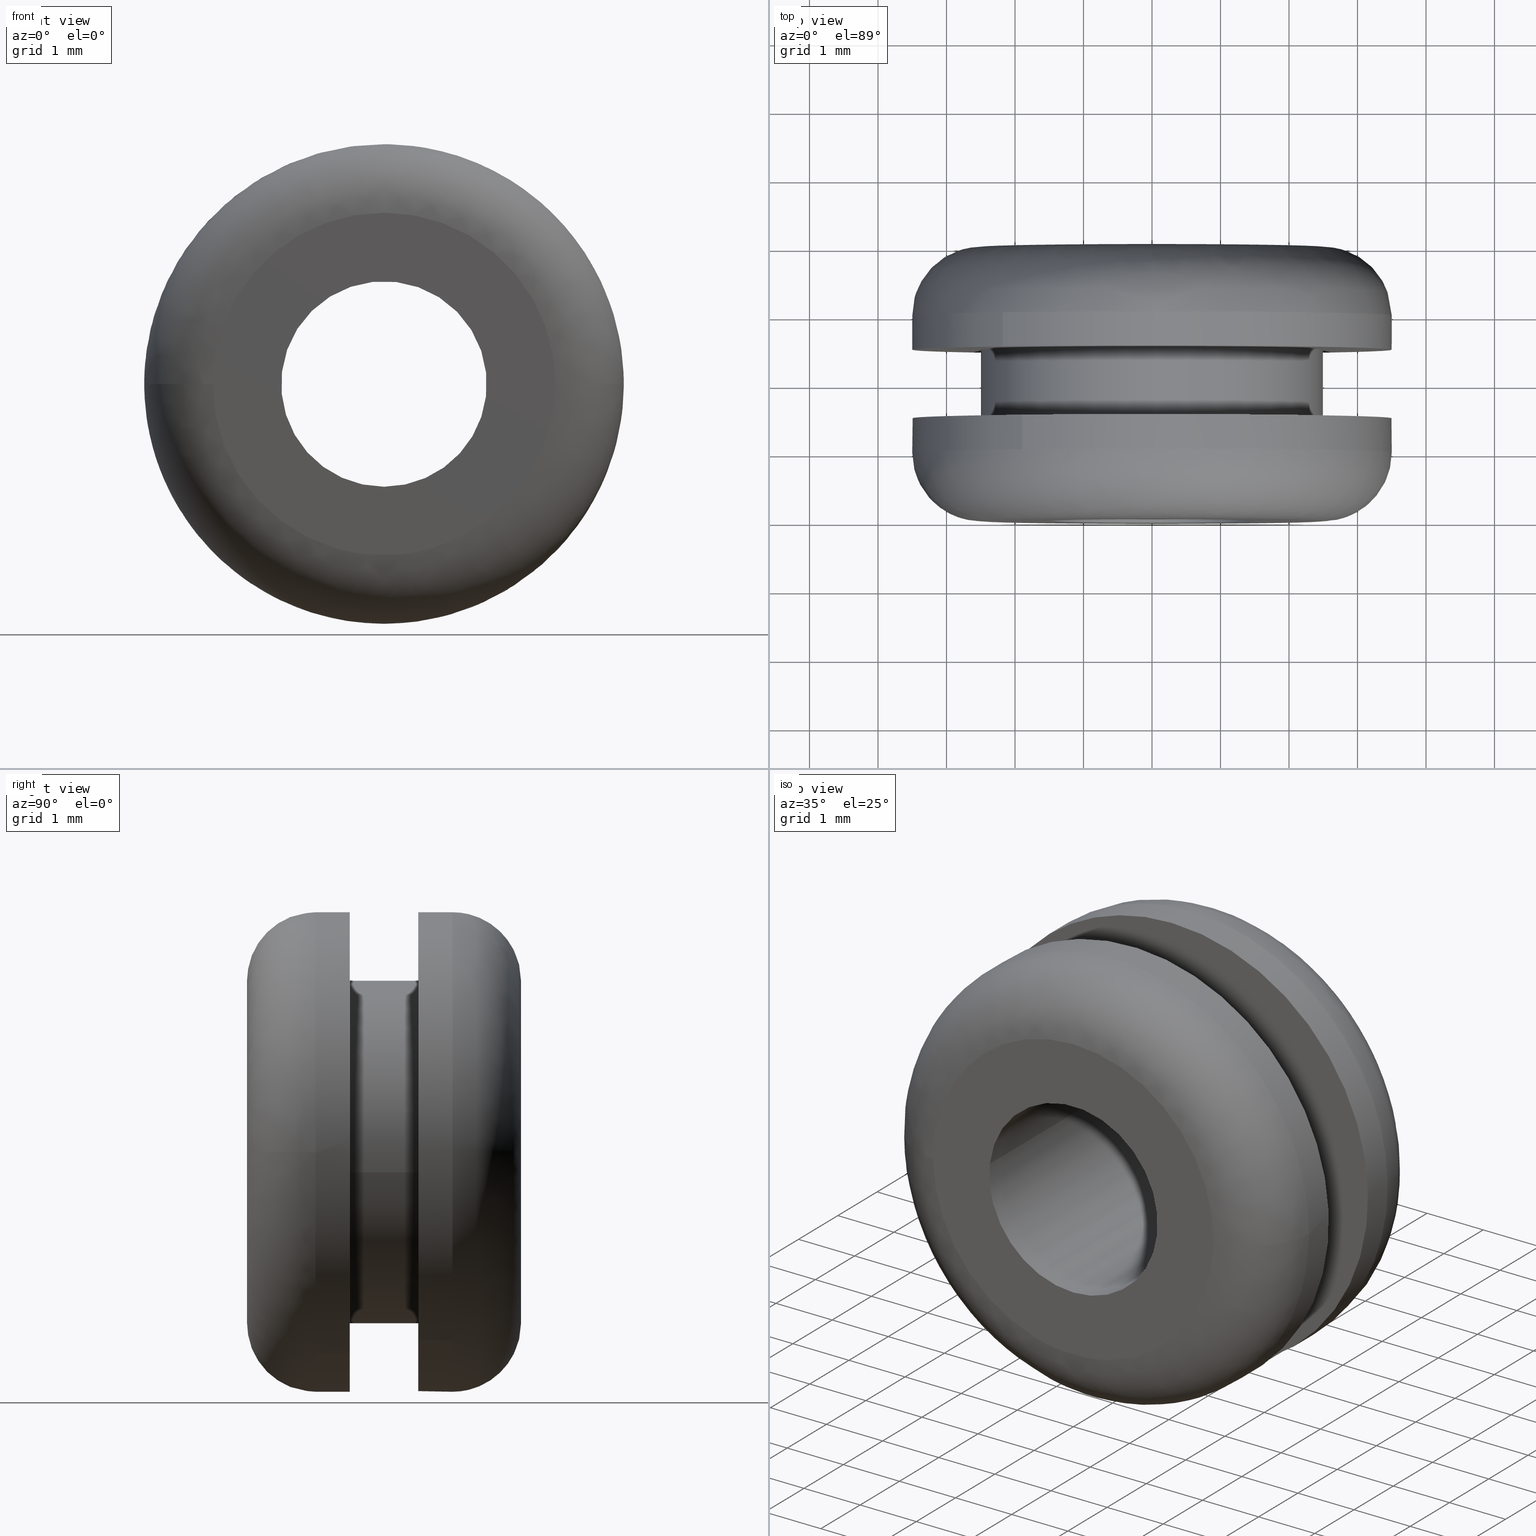
[diagram: canonical four-view strip — front | top / right | iso, engineering-drawing reading convention]
A machine part, canonical four-view strip (front | top / right | iso — engineering-drawing reading convention). The complete STEP part file that produces these views, byte-faithful:
ISO-10303-21;
HEADER;

FILE_DESCRIPTION( (''), '2;1');
FILE_NAME ('PC50.12492.TM_KG_74_CRUL_7219.stp','2019-12-19T11:09:36',(''),(''),'spGate 15.6.1','','');

FILE_SCHEMA (('AUTOMOTIVE_DESIGN'));
ENDSEC;

DATA;
#10=(GEOMETRIC_REPRESENTATION_CONTEXT(3) GLOBAL_UNCERTAINTY_ASSIGNED_CONTEXT((#11)) GLOBAL_UNIT_ASSIGNED_CONTEXT((#12,#13,#14)) REPRESENTATION_CONTEXT('ID1','3D'));
#11=UNCERTAINTY_MEASURE_WITH_UNIT(LENGTH_MEASURE(0.01),#15,'DISTANCE_ACCURACY_VALUE','Maximum model space distance between geometric entities at asserted connectivities');
#12=(NAMED_UNIT(*) SI_UNIT($,.STERADIAN.) SOLID_ANGLE_UNIT());
#13=(CONVERSION_BASED_UNIT('DEGREE',#16) NAMED_UNIT(#17) PLANE_ANGLE_UNIT());
#14=(LENGTH_UNIT() NAMED_UNIT(*) SI_UNIT(.MILLI.,.METRE.));
#15=(LENGTH_UNIT() NAMED_UNIT(*) SI_UNIT(.MILLI.,.METRE.));
#16=PLANE_ANGLE_MEASURE_WITH_UNIT(PLANE_ANGLE_MEASURE(0.01745329252),#18);
#17=DIMENSIONAL_EXPONENTS(0.0,0.0,0.0,0.0,0.0,0.0,0.0);
#18=(NAMED_UNIT(*) PLANE_ANGLE_UNIT() SI_UNIT($,.RADIAN.));
#19=MANIFOLD_SOLID_BREP('TM_KG_74',#31);
#20=ADVANCED_BREP_SHAPE_REPRESENTATION('',(#19),#10);
#21=APPLICATION_CONTEXT('');
#22=APPLICATION_PROTOCOL_DEFINITION('International Standard','automotive_design',1999,#21);
#23=PRODUCT_DEFINITION_CONTEXT('',#21,'design');
#24=PRODUCT_CONTEXT('',#21,'mechanical');
#25=PRODUCT('','','',(#24));
#26=PRODUCT_DEFINITION_FORMATION_WITH_SPECIFIED_SOURCE('','',#25,.NOT_KNOWN.);
#27=PRODUCT_RELATED_PRODUCT_CATEGORY('tool','tool',(#25));
#28=PRODUCT_DEFINITION('','',#26,#23);
#29=PRODUCT_DEFINITION_SHAPE('','',#28);
#30=SHAPE_DEFINITION_REPRESENTATION(#29,#20);
#31=CLOSED_SHELL('',(#40,#41,#42,#43,#44,#45,#46,#47,#48,#49,#50,#51,#52,#53,#54,#55));
#32=COLOUR_RGB('',0.00000000000E+000,0.00000000000E+000,0.00000000000E+000);
#33=FILL_AREA_STYLE_COLOUR('',#32);
#34=FILL_AREA_STYLE('',(#33));
#35=SURFACE_STYLE_FILL_AREA(#34);
#36=SURFACE_SIDE_STYLE('',(#35));
#37=SURFACE_STYLE_USAGE(.BOTH.,#36);
#38=PRESENTATION_STYLE_ASSIGNMENT((#37));
#39=STYLED_ITEM('',(#38),#19);
#40=ADVANCED_FACE('',(#57,#58),#56,.F.);
#41=ADVANCED_FACE('',(#68,#69),#67,.F.);
#42=ADVANCED_FACE('',(#79,#80),#78,.F.);
#43=ADVANCED_FACE('',(#90,#91),#89,.F.);
#44=ADVANCED_FACE('',(#101),#100,.T.);
#45=ADVANCED_FACE('',(#111),#110,.T.);
#46=ADVANCED_FACE('',(#121),#120,.T.);
#47=ADVANCED_FACE('',(#131),#130,.T.);
#48=ADVANCED_FACE('',(#141),#140,.T.);
#49=ADVANCED_FACE('',(#151),#150,.T.);
#50=ADVANCED_FACE('',(#161),#160,.T.);
#51=ADVANCED_FACE('',(#171),#170,.T.);
#52=ADVANCED_FACE('',(#181),#180,.F.);
#53=ADVANCED_FACE('',(#191),#190,.F.);
#54=ADVANCED_FACE('',(#201),#200,.T.);
#55=ADVANCED_FACE('',(#211),#210,.T.);
#56=PLANE('',#223);
#57=FACE_OUTER_BOUND('',#224,.T.);
#58=FACE_BOUND('',#225,.T.);
#59=COLOUR_RGB('',1.00000000000E+000,1.00000000000E+000,1.00000000000E+000);
#60=FILL_AREA_STYLE_COLOUR('',#59);
#61=FILL_AREA_STYLE('',(#60));
#62=SURFACE_STYLE_FILL_AREA(#61);
#63=SURFACE_SIDE_STYLE('',(#62));
#64=SURFACE_STYLE_USAGE(.BOTH.,#63);
#65=PRESENTATION_STYLE_ASSIGNMENT((#64));
#66=STYLED_ITEM('',(#65),#40);
#67=PLANE('',#229);
#68=FACE_OUTER_BOUND('',#230,.T.);
#69=FACE_BOUND('',#231,.T.);
#70=COLOUR_RGB('',1.00000000000E+000,1.00000000000E+000,1.00000000000E+000);
#71=FILL_AREA_STYLE_COLOUR('',#70);
#72=FILL_AREA_STYLE('',(#71));
#73=SURFACE_STYLE_FILL_AREA(#72);
#74=SURFACE_SIDE_STYLE('',(#73));
#75=SURFACE_STYLE_USAGE(.BOTH.,#74);
#76=PRESENTATION_STYLE_ASSIGNMENT((#75));
#77=STYLED_ITEM('',(#76),#41);
#78=PLANE('',#235);
#79=FACE_OUTER_BOUND('',#236,.T.);
#80=FACE_BOUND('',#237,.T.);
#81=COLOUR_RGB('',1.00000000000E+000,1.00000000000E+000,1.00000000000E+000);
#82=FILL_AREA_STYLE_COLOUR('',#81);
#83=FILL_AREA_STYLE('',(#82));
#84=SURFACE_STYLE_FILL_AREA(#83);
#85=SURFACE_SIDE_STYLE('',(#84));
#86=SURFACE_STYLE_USAGE(.BOTH.,#85);
#87=PRESENTATION_STYLE_ASSIGNMENT((#86));
#88=STYLED_ITEM('',(#87),#42);
#89=PLANE('',#241);
#90=FACE_OUTER_BOUND('',#242,.T.);
#91=FACE_BOUND('',#243,.T.);
#92=COLOUR_RGB('',1.00000000000E+000,1.00000000000E+000,1.00000000000E+000);
#93=FILL_AREA_STYLE_COLOUR('',#92);
#94=FILL_AREA_STYLE('',(#93));
#95=SURFACE_STYLE_FILL_AREA(#94);
#96=SURFACE_SIDE_STYLE('',(#95));
#97=SURFACE_STYLE_USAGE(.BOTH.,#96);
#98=PRESENTATION_STYLE_ASSIGNMENT((#97));
#99=STYLED_ITEM('',(#98),#43);
#100=CYLINDRICAL_SURFACE('',#247,2.50000000000E+000);
#101=FACE_OUTER_BOUND('',#248,.T.);
#102=COLOUR_RGB('',1.00000000000E+000,1.00000000000E+000,1.00000000000E+000);
#103=FILL_AREA_STYLE_COLOUR('',#102);
#104=FILL_AREA_STYLE('',(#103));
#105=SURFACE_STYLE_FILL_AREA(#104);
#106=SURFACE_SIDE_STYLE('',(#105));
#107=SURFACE_STYLE_USAGE(.BOTH.,#106);
#108=PRESENTATION_STYLE_ASSIGNMENT((#107));
#109=STYLED_ITEM('',(#108),#44);
#110=CYLINDRICAL_SURFACE('',#252,2.50000000000E+000);
#111=FACE_OUTER_BOUND('',#253,.T.);
#112=COLOUR_RGB('',1.00000000000E+000,1.00000000000E+000,1.00000000000E+000);
#113=FILL_AREA_STYLE_COLOUR('',#112);
#114=FILL_AREA_STYLE('',(#113));
#115=SURFACE_STYLE_FILL_AREA(#114);
#116=SURFACE_SIDE_STYLE('',(#115));
#117=SURFACE_STYLE_USAGE(.BOTH.,#116);
#118=PRESENTATION_STYLE_ASSIGNMENT((#117));
#119=STYLED_ITEM('',(#118),#45);
#120=CYLINDRICAL_SURFACE('',#257,3.50000000000E+000);
#121=FACE_OUTER_BOUND('',#258,.T.);
#122=COLOUR_RGB('',1.00000000000E+000,1.00000000000E+000,1.00000000000E+000);
#123=FILL_AREA_STYLE_COLOUR('',#122);
#124=FILL_AREA_STYLE('',(#123));
#125=SURFACE_STYLE_FILL_AREA(#124);
#126=SURFACE_SIDE_STYLE('',(#125));
#127=SURFACE_STYLE_USAGE(.BOTH.,#126);
#128=PRESENTATION_STYLE_ASSIGNMENT((#127));
#129=STYLED_ITEM('',(#128),#46);
#130=CYLINDRICAL_SURFACE('',#262,3.50000000000E+000);
#131=FACE_OUTER_BOUND('',#263,.T.);
#132=COLOUR_RGB('',1.00000000000E+000,1.00000000000E+000,1.00000000000E+000);
#133=FILL_AREA_STYLE_COLOUR('',#132);
#134=FILL_AREA_STYLE('',(#133));
#135=SURFACE_STYLE_FILL_AREA(#134);
#136=SURFACE_SIDE_STYLE('',(#135));
#137=SURFACE_STYLE_USAGE(.BOTH.,#136);
#138=PRESENTATION_STYLE_ASSIGNMENT((#137));
#139=STYLED_ITEM('',(#138),#47);
#140=( BOUNDED_SURFACE() B_SPLINE_SURFACE( 2,2,((#264,#265,#266,#267,#268),(#269,#270,#271,#272,#273),(#274,#275,#276,#277,#278),(#279,#280,#281,#282,#283),(#284,#285,#286,#287,#288)), .UNSPECIFIED.,.F.,.F.,.F.) B_SPLINE_SURFACE_WITH_KNOTS((3,2,3),(3,2,3),(-1.57079684420E+000,-1.04719719726E+000,1.06181747350E-006),(0.00000000000E+000,1.57079632679E+000,3.14159265359E+000), .UNSPECIFIED. ) GEOMETRIC_REPRESENTATION_ITEM() RATIONAL_B_SPLINE_SURFACE(((9.33012613407E-001,6.59739545873E-001,9.33012613407E-001,6.59739545873E-001,9.33012613407E-001),(9.33012547213E-001,6.59739499066E-001,9.33012547213E-001,6.59739499066E-001,9.33012547213E-001),(1.00000000000E+000,7.07106781187E-001,1.00000000000E+000,7.07106781187E-001,1.00000000000E+000),(8.66025226815E-001,6.12372310559E-001,8.66025226815E-001,6.12372310559E-001,8.66025226815E-001),(1.00000000000E+000,7.07106781187E-001,1.00000000000E+000,7.07106781187E-001,1.00000000000E+000))) REPRESENTATION_ITEM('') SURFACE() );
#141=FACE_OUTER_BOUND('',#289,.T.);
#142=COLOUR_RGB('',1.00000000000E+000,1.00000000000E+000,1.00000000000E+000);
#143=FILL_AREA_STYLE_COLOUR('',#142);
#144=FILL_AREA_STYLE('',(#143));
#145=SURFACE_STYLE_FILL_AREA(#144);
#146=SURFACE_SIDE_STYLE('',(#145));
#147=SURFACE_STYLE_USAGE(.BOTH.,#146);
#148=PRESENTATION_STYLE_ASSIGNMENT((#147));
#149=STYLED_ITEM('',(#148),#48);
#150=( BOUNDED_SURFACE() B_SPLINE_SURFACE( 2,2,((#290,#291,#292,#293,#294),(#295,#296,#297,#298,#299),(#300,#301,#302,#303,#304),(#305,#306,#307,#308,#309),(#310,#311,#312,#313,#314)), .UNSPECIFIED.,.F.,.F.,.F.) B_SPLINE_SURFACE_WITH_KNOTS((3,2,3),(3,2,3),(-1.57079693037E+000,-1.04719719726E+000,1.06181747350E-006),(3.14159265359E+000,4.71238898038E+000,6.28318530718E+000), .UNSPECIFIED. ) GEOMETRIC_REPRESENTATION_ITEM() RATIONAL_B_SPLINE_SURFACE(((9.33012613407E-001,6.59739545873E-001,9.33012613407E-001,6.59739545873E-001,9.33012613407E-001),(9.33012536188E-001,6.59739491271E-001,9.33012536188E-001,6.59739491271E-001,9.33012536188E-001),(1.00000000000E+000,7.07106781187E-001,1.00000000000E+000,7.07106781187E-001,1.00000000000E+000),(8.66025226815E-001,6.12372310559E-001,8.66025226815E-001,6.12372310559E-001,8.66025226815E-001),(1.00000000000E+000,7.07106781187E-001,1.00000000000E+000,7.07106781187E-001,1.00000000000E+000))) REPRESENTATION_ITEM('') SURFACE() );
#151=FACE_OUTER_BOUND('',#315,.T.);
#152=COLOUR_RGB('',1.00000000000E+000,1.00000000000E+000,1.00000000000E+000);
#153=FILL_AREA_STYLE_COLOUR('',#152);
#154=FILL_AREA_STYLE('',(#153));
#155=SURFACE_STYLE_FILL_AREA(#154);
#156=SURFACE_SIDE_STYLE('',(#155));
#157=SURFACE_STYLE_USAGE(.BOTH.,#156);
#158=PRESENTATION_STYLE_ASSIGNMENT((#157));
#159=STYLED_ITEM('',(#158),#49);
#160=( BOUNDED_SURFACE() B_SPLINE_SURFACE( 2,2,((#316,#317,#318,#319,#320),(#321,#322,#323,#324,#325),(#326,#327,#328,#329,#330),(#331,#332,#333,#334,#335),(#336,#337,#338,#339,#340)), .UNSPECIFIED.,.F.,.F.,.F.) B_SPLINE_SURFACE_WITH_KNOTS((3,2,3),(3,2,3),(0.00000000000E+000,5.00000000000E-001,1.00000000000E+000),(0.00000000000E+000,5.00000000000E-001,1.00000000000E+000), .UNSPECIFIED. ) GEOMETRIC_REPRESENTATION_ITEM() RATIONAL_B_SPLINE_SURFACE(((1.00000000000E+000,7.07106781015E-001,1.00000000000E+000,7.07106781015E-001,1.00000000000E+000),(7.07106781187E-001,4.99999999879E-001,7.07106781187E-001,4.99999999879E-001,7.07106781187E-001),(1.00000000000E+000,7.07106781015E-001,1.00000000000E+000,7.07106781015E-001,1.00000000000E+000),(7.07106781187E-001,4.99999999879E-001,7.07106781187E-001,4.99999999879E-001,7.07106781187E-001),(1.00000000000E+000,7.07106781015E-001,1.00000000000E+000,7.07106781015E-001,1.00000000000E+000))) REPRESENTATION_ITEM('') SURFACE() );
#161=FACE_OUTER_BOUND('',#341,.T.);
#162=COLOUR_RGB('',1.00000000000E+000,1.00000000000E+000,1.00000000000E+000);
#163=FILL_AREA_STYLE_COLOUR('',#162);
#164=FILL_AREA_STYLE('',(#163));
#165=SURFACE_STYLE_FILL_AREA(#164);
#166=SURFACE_SIDE_STYLE('',(#165));
#167=SURFACE_STYLE_USAGE(.BOTH.,#166);
#168=PRESENTATION_STYLE_ASSIGNMENT((#167));
#169=STYLED_ITEM('',(#168),#50);
#170=( BOUNDED_SURFACE() B_SPLINE_SURFACE( 2,2,((#342,#343,#344,#345,#346),(#347,#348,#349,#350,#351),(#352,#353,#354,#355,#356),(#357,#358,#359,#360,#361),(#362,#363,#364,#365,#366)), .UNSPECIFIED.,.F.,.F.,.F.) B_SPLINE_SURFACE_WITH_KNOTS((3,2,3),(3,2,3),(0.00000000000E+000,5.00000000000E-001,1.00000000000E+000),(0.00000000000E+000,5.00000000000E-001,1.00000000000E+000), .UNSPECIFIED. ) GEOMETRIC_REPRESENTATION_ITEM() RATIONAL_B_SPLINE_SURFACE(((1.00000000000E+000,7.07106781015E-001,1.00000000000E+000,7.07106781015E-001,1.00000000000E+000),(7.07106781187E-001,4.99999999879E-001,7.07106781187E-001,4.99999999879E-001,7.07106781187E-001),(1.00000000000E+000,7.07106781015E-001,1.00000000000E+000,7.07106781015E-001,1.00000000000E+000),(7.07106781187E-001,4.99999999879E-001,7.07106781187E-001,4.99999999879E-001,7.07106781187E-001),(1.00000000000E+000,7.07106781015E-001,1.00000000000E+000,7.07106781015E-001,1.00000000000E+000))) REPRESENTATION_ITEM('') SURFACE() );
#171=FACE_OUTER_BOUND('',#367,.T.);
#172=COLOUR_RGB('',1.00000000000E+000,1.00000000000E+000,1.00000000000E+000);
#173=FILL_AREA_STYLE_COLOUR('',#172);
#174=FILL_AREA_STYLE('',(#173));
#175=SURFACE_STYLE_FILL_AREA(#174);
#176=SURFACE_SIDE_STYLE('',(#175));
#177=SURFACE_STYLE_USAGE(.BOTH.,#176);
#178=PRESENTATION_STYLE_ASSIGNMENT((#177));
#179=STYLED_ITEM('',(#178),#51);
#180=CYLINDRICAL_SURFACE('',#371,1.50000000000E+000);
#181=FACE_OUTER_BOUND('',#372,.T.);
#182=COLOUR_RGB('',1.00000000000E+000,1.00000000000E+000,1.00000000000E+000);
#183=FILL_AREA_STYLE_COLOUR('',#182);
#184=FILL_AREA_STYLE('',(#183));
#185=SURFACE_STYLE_FILL_AREA(#184);
#186=SURFACE_SIDE_STYLE('',(#185));
#187=SURFACE_STYLE_USAGE(.BOTH.,#186);
#188=PRESENTATION_STYLE_ASSIGNMENT((#187));
#189=STYLED_ITEM('',(#188),#52);
#190=CYLINDRICAL_SURFACE('',#376,1.50000000000E+000);
#191=FACE_OUTER_BOUND('',#377,.T.);
#192=COLOUR_RGB('',1.00000000000E+000,1.00000000000E+000,1.00000000000E+000);
#193=FILL_AREA_STYLE_COLOUR('',#192);
#194=FILL_AREA_STYLE('',(#193));
#195=SURFACE_STYLE_FILL_AREA(#194);
#196=SURFACE_SIDE_STYLE('',(#195));
#197=SURFACE_STYLE_USAGE(.BOTH.,#196);
#198=PRESENTATION_STYLE_ASSIGNMENT((#197));
#199=STYLED_ITEM('',(#198),#53);
#200=CYLINDRICAL_SURFACE('',#381,3.50000000000E+000);
#201=FACE_OUTER_BOUND('',#382,.T.);
#202=COLOUR_RGB('',1.00000000000E+000,1.00000000000E+000,1.00000000000E+000);
#203=FILL_AREA_STYLE_COLOUR('',#202);
#204=FILL_AREA_STYLE('',(#203));
#205=SURFACE_STYLE_FILL_AREA(#204);
#206=SURFACE_SIDE_STYLE('',(#205));
#207=SURFACE_STYLE_USAGE(.BOTH.,#206);
#208=PRESENTATION_STYLE_ASSIGNMENT((#207));
#209=STYLED_ITEM('',(#208),#54);
#210=CYLINDRICAL_SURFACE('',#386,3.50000000000E+000);
#211=FACE_OUTER_BOUND('',#387,.T.);
#212=COLOUR_RGB('',1.00000000000E+000,1.00000000000E+000,1.00000000000E+000);
#213=FILL_AREA_STYLE_COLOUR('',#212);
#214=FILL_AREA_STYLE('',(#213));
#215=SURFACE_STYLE_FILL_AREA(#214);
#216=SURFACE_SIDE_STYLE('',(#215));
#217=SURFACE_STYLE_USAGE(.BOTH.,#216);
#218=PRESENTATION_STYLE_ASSIGNMENT((#217));
#219=STYLED_ITEM('',(#218),#55);
#220=CARTESIAN_POINT('',(-7.27461339179E+000,1.50000000000E+000,8.05000000000E+000));
#221=DIRECTION('',(0.00000000000E+000,-1.00000000000E+000,0.00000000000E+000));
#222=DIRECTION('',(0.00000000000E+000,0.00000000000E+000,-1.00000000000E+000));
#223=AXIS2_PLACEMENT_3D('',#220,#221,#222);
#224=EDGE_LOOP('',(#388,#389,#390));
#225=EDGE_LOOP('',(#391,#392,#393));
#226=CARTESIAN_POINT('',(-7.27461339179E+000,2.50000000000E+000,-8.05000000000E+000));
#227=DIRECTION('',(0.00000000000E+000,1.00000000000E+000,0.00000000000E+000));
#228=DIRECTION('',(0.00000000000E+000,0.00000000000E+000,1.00000000000E+000));
#229=AXIS2_PLACEMENT_3D('',#226,#227,#228);
#230=EDGE_LOOP('',(#394,#395,#396));
#231=EDGE_LOOP('',(#397,#398,#399));
#232=CARTESIAN_POINT('',(-5.19615242290E+000,4.00000000000E+000,5.75000000013E+000));
#233=DIRECTION('',(0.00000000000E+000,-1.00000000000E+000,0.00000000000E+000));
#234=DIRECTION('',(0.00000000000E+000,0.00000000000E+000,-1.00000000000E+000));
#235=AXIS2_PLACEMENT_3D('',#232,#233,#234);
#236=EDGE_LOOP('',(#400,#401));
#237=EDGE_LOOP('',(#402,#403,#404));
#238=CARTESIAN_POINT('',(-5.19615242273E+000,-3.67381900000E-016,-5.75000000002E+000));
#239=DIRECTION('',(0.00000000000E+000,1.00000000000E+000,0.00000000000E+000));
#240=DIRECTION('',(0.00000000000E+000,0.00000000000E+000,1.00000000000E+000));
#241=AXIS2_PLACEMENT_3D('',#238,#239,#240);
#242=EDGE_LOOP('',(#405,#406,#407));
#243=EDGE_LOOP('',(#408,#409,#410));
#244=CARTESIAN_POINT('',(2.08888715409E-016,2.52500000000E+000,1.37333843271E-015));
#245=DIRECTION('',(3.87739764389E-016,1.00000000000E+000,4.01448887381E-015));
#246=DIRECTION('',(-9.93009526364E-001,-8.88178419700E-017,1.18034234657E-001));
#247=AXIS2_PLACEMENT_3D('',#244,#245,#246);
#248=EDGE_LOOP('',(#411,#412,#413,#414));
#249=CARTESIAN_POINT('',(2.08888715409E-016,2.52500000000E+000,1.37333843271E-015));
#250=DIRECTION('',(3.87739764389E-016,1.00000000000E+000,4.01448887381E-015));
#251=DIRECTION('',(-9.93009526364E-001,-8.88178419700E-017,1.18034234657E-001));
#252=AXIS2_PLACEMENT_3D('',#249,#250,#251);
#253=EDGE_LOOP('',(#415,#416,#417,#418,#419,#420));
#254=CARTESIAN_POINT('',(-2.86607276532E-016,1.51250000000E+000,-4.85808096785E-016));
#255=DIRECTION('',(-2.45806721167E-016,1.00000000000E+000,-1.58834548710E-016));
#256=DIRECTION('',(-5.42728861529E-001,-0.00000000000E+000,8.39907960948E-001));
#257=AXIS2_PLACEMENT_3D('',#254,#255,#256);
#258=EDGE_LOOP('',(#421,#422,#423,#424,#425,#426,#427));
#259=CARTESIAN_POINT('',(-2.86607276532E-016,1.51250000000E+000,-4.85808096785E-016));
#260=DIRECTION('',(-2.45806721167E-016,1.00000000000E+000,-1.58834548710E-016));
#261=DIRECTION('',(-5.42728861529E-001,-0.00000000000E+000,8.39907960948E-001));
#262=AXIS2_PLACEMENT_3D('',#259,#260,#261);
#263=EDGE_LOOP('',(#428,#429,#430,#431,#432,#433,#434,#435));
#264=CARTESIAN_POINT('',(3.98782032897E-013,4.00000000000E+000,2.49999947044E+000));
#265=CARTESIAN_POINT('',(2.49999947044E+000,4.00000000000E+000,2.49999947044E+000));
#266=CARTESIAN_POINT('',(2.49999947044E+000,4.00000000000E+000,-3.85980801734E-014));
#267=CARTESIAN_POINT('',(2.49999947044E+000,4.00000000000E+000,-2.49999947044E+000));
#268=CARTESIAN_POINT('',(3.98169729850E-013,4.00000000000E+000,-2.49999947044E+000));
#269=CARTESIAN_POINT('',(3.98814846234E-013,4.00000014189E+000,2.76794913634E+000));
#270=CARTESIAN_POINT('',(2.76794913634E+000,4.00000014189E+000,2.76794913634E+000));
#271=CARTESIAN_POINT('',(2.76794913634E+000,4.00000014189E+000,-3.86308925856E-014));
#272=CARTESIAN_POINT('',(2.76794913634E+000,4.00000014189E+000,-2.76794913634E+000));
#273=CARTESIAN_POINT('',(3.98136916614E-013,4.00000014189E+000,-2.76794913634E+000));
#274=CARTESIAN_POINT('',(3.98795455272E-013,3.86602522681E+000,3.00000030652E+000));
#275=CARTESIAN_POINT('',(3.00000030652E+000,3.86602522681E+000,3.00000030652E+000));
#276=CARTESIAN_POINT('',(3.00000030652E+000,3.86602522681E+000,-3.94846434837E-014));
#277=CARTESIAN_POINT('',(3.00000030652E+000,3.86602522681E+000,-3.00000030652E+000));
#278=CARTESIAN_POINT('',(3.98060691384E-013,3.86602522681E+000,-3.00000030652E+000));
#279=CARTESIAN_POINT('',(3.98753673595E-013,3.57734967929E+000,3.50000061304E+000));
#280=CARTESIAN_POINT('',(3.50000061304E+000,3.57734967929E+000,3.50000061304E+000));
#281=CARTESIAN_POINT('',(3.50000061304E+000,3.57734967929E+000,-4.13242192568E-014));
#282=CARTESIAN_POINT('',(3.50000061304E+000,3.57734967929E+000,-3.50000061304E+000));
#283=CARTESIAN_POINT('',(3.97896448997E-013,3.57734967929E+000,-3.50000061304E+000));
#284=CARTESIAN_POINT('',(3.98547649582E-013,2.99999893818E+000,3.50000000000E+000));
#285=CARTESIAN_POINT('',(3.50000000000E+000,2.99999893818E+000,3.50000000000E+000));
#286=CARTESIAN_POINT('',(3.50000000000E+000,2.99999893818E+000,-4.48809078369E-014));
#287=CARTESIAN_POINT('',(3.50000000000E+000,2.99999893818E+000,-3.50000000000E+000));
#288=CARTESIAN_POINT('',(3.97690425134E-013,2.99999893818E+000,-3.50000000000E+000));
#289=EDGE_LOOP('',(#436,#437,#438,#439,#440,#441,#442));
#290=CARTESIAN_POINT('',(3.98169729860E-013,4.00000000000E+000,-2.49999938225E+000));
#291=CARTESIAN_POINT('',(-2.49999938224E+000,4.00000000000E+000,-2.49999938225E+000));
#292=CARTESIAN_POINT('',(-2.49999938224E+000,4.00000000000E+000,-3.79857771369E-014));
#293=CARTESIAN_POINT('',(-2.49999938224E+000,4.00000000000E+000,2.49999938225E+000));
#294=CARTESIAN_POINT('',(3.98782032886E-013,4.00000000000E+000,2.49999938225E+000));
#295=CARTESIAN_POINT('',(3.98136916627E-013,4.00000016553E+000,-2.76794909541E+000));
#296=CARTESIAN_POINT('',(-2.76794909541E+000,4.00000016553E+000,-2.76794909541E+000));
#297=CARTESIAN_POINT('',(-2.76794909541E+000,4.00000016553E+000,-3.79529628251E-014));
#298=CARTESIAN_POINT('',(-2.76794909541E+000,4.00000016553E+000,2.76794909541E+000));
#299=CARTESIAN_POINT('',(3.98814846237E-013,4.00000016553E+000,2.76794909541E+000));
#300=CARTESIAN_POINT('',(3.98060691384E-013,3.86602522681E+000,-3.00000030652E+000));
#301=CARTESIAN_POINT('',(-3.00000030652E+000,3.86602522681E+000,-3.00000030652E+000));
#302=CARTESIAN_POINT('',(-3.00000030652E+000,3.86602522681E+000,-3.87498795964E-014));
#303=CARTESIAN_POINT('',(-3.00000030652E+000,3.86602522681E+000,3.00000030652E+000));
#304=CARTESIAN_POINT('',(3.98795455272E-013,3.86602522681E+000,3.00000030652E+000));
#305=CARTESIAN_POINT('',(3.97896448997E-013,3.57734967929E+000,-3.50000061304E+000));
#306=CARTESIAN_POINT('',(-3.50000061304E+000,3.57734967929E+000,-3.50000061304E+000));
#307=CARTESIAN_POINT('',(-3.50000061304E+000,3.57734967929E+000,-4.04669946589E-014));
#308=CARTESIAN_POINT('',(-3.50000061304E+000,3.57734967929E+000,3.50000061304E+000));
#309=CARTESIAN_POINT('',(3.98753673595E-013,3.57734967929E+000,3.50000061304E+000));
#310=CARTESIAN_POINT('',(3.97690425134E-013,2.99999893818E+000,-3.50000000000E+000));
#311=CARTESIAN_POINT('',(-3.50000000000E+000,2.99999893818E+000,-3.50000000000E+000));
#312=CARTESIAN_POINT('',(-3.50000000000E+000,2.99999893818E+000,-4.40236833892E-014));
#313=CARTESIAN_POINT('',(-3.50000000000E+000,2.99999893818E+000,3.50000000000E+000));
#314=CARTESIAN_POINT('',(3.98547649582E-013,2.99999893818E+000,3.50000000000E+000));
#315=EDGE_LOOP('',(#443,#444,#445,#446,#447));
#316=CARTESIAN_POINT('',(-3.50000000000E+000,1.00000000000E+000,3.17721922990E-014));
#317=CARTESIAN_POINT('',(-3.50000000000E+000,-4.85993231002E-010,2.98683484981E-014));
#318=CARTESIAN_POINT('',(-2.49999999951E+000,-5.55111512313E-016,2.99908091344E-014));
#319=CARTESIAN_POINT('',(-1.49999999903E+000,4.85992131938E-010,3.01132697708E-014));
#320=CARTESIAN_POINT('',(-1.50000000000E+000,1.00000000097E+000,3.20171135716E-014));
#321=CARTESIAN_POINT('',(-3.50000000000E+000,1.00000000000E+000,-3.50000000000E+000));
#322=CARTESIAN_POINT('',(-3.50000000000E+000,-4.85986591957E-010,-3.50000000000E+000));
#323=CARTESIAN_POINT('',(-2.49999999951E+000,4.14593852885E-015,-2.49999999951E+000));
#324=CARTESIAN_POINT('',(-1.49999999903E+000,4.85995059265E-010,-1.49999999903E+000));
#325=CARTESIAN_POINT('',(-1.50000000000E+000,1.00000000097E+000,-1.50000000000E+000));
#326=CARTESIAN_POINT('',(3.65373590727E-013,1.00000000000E+000,-3.50000000000E+000));
#327=CARTESIAN_POINT('',(5.16868691737E-013,-4.85456259381E-010,-3.50000000000E+000));
#328=CARTESIAN_POINT('',(5.16807463368E-013,3.82804898891E-013,-2.49999999951E+000));
#329=CARTESIAN_POINT('',(5.16746234998E-013,4.86222307492E-010,-1.49999999903E+000));
#330=CARTESIAN_POINT('',(3.65251133989E-013,1.00000000097E+000,-1.50000000000E+000));
#331=CARTESIAN_POINT('',(3.50000000000E+000,1.00000000000E+000,-3.50000000000E+000));
#332=CARTESIAN_POINT('',(3.50000000000E+000,-4.84926106924E-010,-3.50000000000E+000));
#333=CARTESIAN_POINT('',(2.49999999952E+000,7.61558540598E-013,-2.49999999951E+000));
#334=CARTESIAN_POINT('',(1.49999999903E+000,4.86449519536E-010,-1.49999999903E+000));
#335=CARTESIAN_POINT('',(1.50000000000E+000,1.00000000097E+000,-1.50000000000E+000));
#336=CARTESIAN_POINT('',(3.50000000000E+000,1.00000000000E+000,3.22007903670E-014));
#337=CARTESIAN_POINT('',(3.50000000000E+000,-4.84932790556E-010,3.02969465660E-014));
#338=CARTESIAN_POINT('',(2.49999999952E+000,7.56839035887E-013,3.02969506115E-014));
#339=CARTESIAN_POINT('',(1.49999999903E+000,4.86446673705E-010,3.02969546570E-014));
#340=CARTESIAN_POINT('',(1.50000000000E+000,1.00000000097E+000,3.22007984579E-014));
#341=EDGE_LOOP('',(#448,#449,#450,#451,#452,#453,#454));
#342=CARTESIAN_POINT('',(3.50000000000E+000,1.00000000000E+000,3.22007903670E-014));
#343=CARTESIAN_POINT('',(3.50000000000E+000,-4.84932790556E-010,3.02969465660E-014));
#344=CARTESIAN_POINT('',(2.49999999952E+000,7.56950058189E-013,3.02969506115E-014));
#345=CARTESIAN_POINT('',(1.49999999903E+000,4.86446830714E-010,3.02969546570E-014));
#346=CARTESIAN_POINT('',(1.50000000000E+000,1.00000000097E+000,3.22007984579E-014));
#347=CARTESIAN_POINT('',(3.50000000000E+000,1.00000000000E+000,3.50000000000E+000));
#348=CARTESIAN_POINT('',(3.50000000000E+000,-4.84939429600E-010,3.50000000000E+000));
#349=CARTESIAN_POINT('',(2.49999999952E+000,7.52294995092E-013,2.49999999951E+000));
#350=CARTESIAN_POINT('',(1.49999999903E+000,4.86443903386E-010,1.49999999903E+000));
#351=CARTESIAN_POINT('',(1.50000000000E+000,1.00000000097E+000,1.50000000000E+000));
#352=CARTESIAN_POINT('',(3.65373619039E-013,1.00000000000E+000,3.50000000000E+000));
#353=CARTESIAN_POINT('',(5.16868720048E-013,-4.85469762177E-010,3.50000000000E+000));
#354=CARTESIAN_POINT('',(5.16807483590E-013,3.73479025484E-013,2.49999999951E+000));
#355=CARTESIAN_POINT('',(5.16746247132E-013,4.86216655159E-010,1.49999999903E+000));
#356=CARTESIAN_POINT('',(3.65251146123E-013,1.00000000097E+000,1.50000000000E+000));
#357=CARTESIAN_POINT('',(-3.50000000000E+000,1.00000000000E+000,3.50000000000E+000));
#358=CARTESIAN_POINT('',(-3.50000000000E+000,-4.85999914634E-010,3.50000000000E+000));
#359=CARTESIAN_POINT('',(-2.49999999951E+000,-5.27461622325E-015,2.49999999951E+000));
#360=CARTESIAN_POINT('',(-1.49999999903E+000,4.85989443115E-010,1.49999999903E+000));
#361=CARTESIAN_POINT('',(-1.50000000000E+000,1.00000000097E+000,1.50000000000E+000));
#362=CARTESIAN_POINT('',(-3.50000000000E+000,1.00000000000E+000,3.26294450584E-014));
#363=CARTESIAN_POINT('',(-3.50000000000E+000,-4.85993231002E-010,3.07256012575E-014));
#364=CARTESIAN_POINT('',(-2.49999999951E+000,-4.44089209850E-016,3.06031325339E-014));
#365=CARTESIAN_POINT('',(-1.49999999903E+000,4.85992288947E-010,3.04806638103E-014));
#366=CARTESIAN_POINT('',(-1.50000000000E+000,1.00000000097E+000,3.23845076113E-014));
#367=EDGE_LOOP('',(#455,#456,#457,#458,#459,#460,#461,#462));
#368=CARTESIAN_POINT('',(-2.17053185866E-013,4.00000000000E+000,-1.83139444370E-013));
#369=DIRECTION('',(1.09361928017E-015,1.00000000000E+000,1.17087746807E-014));
#370=DIRECTION('',(-9.93009550677E-001,-2.96059473234E-016,1.18034030113E-001));
#371=AXIS2_PLACEMENT_3D('',#368,#369,#370);
#372=EDGE_LOOP('',(#463,#464,#465,#466));
#373=CARTESIAN_POINT('',(-2.17053185866E-013,4.00000000000E+000,-1.83139444370E-013));
#374=DIRECTION('',(1.09361928017E-015,1.00000000000E+000,1.17087746807E-014));
#375=DIRECTION('',(-9.93009550677E-001,-2.96059473234E-016,1.18034030113E-001));
#376=AXIS2_PLACEMENT_3D('',#373,#374,#375);
#377=EDGE_LOOP('',(#467,#468,#469,#470,#471,#472));
#378=CARTESIAN_POINT('',(-3.04292692835E-016,3.01250000001E+000,-1.35353514929E-015));
#379=DIRECTION('',(-1.01794404963E-016,1.00000000000E+000,-8.09709258235E-017));
#380=DIRECTION('',(6.22514636638E-001,-0.00000000000E+000,-7.82608156852E-001));
#381=AXIS2_PLACEMENT_3D('',#378,#379,#380);
#382=EDGE_LOOP('',(#473,#474,#475,#476,#477));
#383=CARTESIAN_POINT('',(-3.04292692835E-016,3.01250000001E+000,-1.35353514929E-015));
#384=DIRECTION('',(-1.01794404963E-016,1.00000000000E+000,-8.09709258235E-017));
#385=DIRECTION('',(6.22514636638E-001,-0.00000000000E+000,-7.82608156852E-001));
#386=AXIS2_PLACEMENT_3D('',#383,#384,#385);
#387=EDGE_LOOP('',(#478,#479,#480,#481,#482,#483,#484,#485));
#388=ORIENTED_EDGE('',*,*,#486,.F.);
#389=ORIENTED_EDGE('',*,*,#487,.F.);
#390=ORIENTED_EDGE('',*,*,#488,.F.);
#391=ORIENTED_EDGE('',*,*,#489,.T.);
#392=ORIENTED_EDGE('',*,*,#490,.T.);
#393=ORIENTED_EDGE('',*,*,#491,.T.);
#394=ORIENTED_EDGE('',*,*,#492,.T.);
#395=ORIENTED_EDGE('',*,*,#493,.T.);
#396=ORIENTED_EDGE('',*,*,#494,.T.);
#397=ORIENTED_EDGE('',*,*,#495,.F.);
#398=ORIENTED_EDGE('',*,*,#496,.F.);
#399=ORIENTED_EDGE('',*,*,#497,.F.);
#400=ORIENTED_EDGE('',*,*,#498,.F.);
#401=ORIENTED_EDGE('',*,*,#499,.F.);
#402=ORIENTED_EDGE('',*,*,#500,.T.);
#403=ORIENTED_EDGE('',*,*,#501,.T.);
#404=ORIENTED_EDGE('',*,*,#502,.T.);
#405=ORIENTED_EDGE('',*,*,#503,.T.);
#406=ORIENTED_EDGE('',*,*,#504,.T.);
#407=ORIENTED_EDGE('',*,*,#505,.T.);
#408=ORIENTED_EDGE('',*,*,#506,.F.);
#409=ORIENTED_EDGE('',*,*,#507,.F.);
#410=ORIENTED_EDGE('',*,*,#508,.F.);
#411=ORIENTED_EDGE('',*,*,#496,.T.);
#412=ORIENTED_EDGE('',*,*,#509,.F.);
#413=ORIENTED_EDGE('',*,*,#490,.F.);
#414=ORIENTED_EDGE('',*,*,#510,.T.);
#415=ORIENTED_EDGE('',*,*,#489,.F.);
#416=ORIENTED_EDGE('',*,*,#491,.F.);
#417=ORIENTED_EDGE('',*,*,#509,.T.);
#418=ORIENTED_EDGE('',*,*,#495,.T.);
#419=ORIENTED_EDGE('',*,*,#497,.T.);
#420=ORIENTED_EDGE('',*,*,#510,.F.);
#421=ORIENTED_EDGE('',*,*,#487,.T.);
#422=ORIENTED_EDGE('',*,*,#511,.F.);
#423=ORIENTED_EDGE('',*,*,#512,.F.);
#424=ORIENTED_EDGE('',*,*,#513,.F.);
#425=ORIENTED_EDGE('',*,*,#514,.F.);
#426=ORIENTED_EDGE('',*,*,#515,.F.);
#427=ORIENTED_EDGE('',*,*,#516,.T.);
#428=ORIENTED_EDGE('',*,*,#517,.F.);
#429=ORIENTED_EDGE('',*,*,#518,.F.);
#430=ORIENTED_EDGE('',*,*,#519,.F.);
#431=ORIENTED_EDGE('',*,*,#520,.F.);
#432=ORIENTED_EDGE('',*,*,#511,.T.);
#433=ORIENTED_EDGE('',*,*,#486,.T.);
#434=ORIENTED_EDGE('',*,*,#488,.T.);
#435=ORIENTED_EDGE('',*,*,#516,.F.);
#436=ORIENTED_EDGE('',*,*,#499,.T.);
#437=ORIENTED_EDGE('',*,*,#521,.T.);
#438=ORIENTED_EDGE('',*,*,#522,.F.);
#439=ORIENTED_EDGE('',*,*,#523,.F.);
#440=ORIENTED_EDGE('',*,*,#524,.F.);
#441=ORIENTED_EDGE('',*,*,#525,.F.);
#442=ORIENTED_EDGE('',*,*,#526,.F.);
#443=ORIENTED_EDGE('',*,*,#527,.F.);
#444=ORIENTED_EDGE('',*,*,#528,.F.);
#445=ORIENTED_EDGE('',*,*,#521,.F.);
#446=ORIENTED_EDGE('',*,*,#498,.T.);
#447=ORIENTED_EDGE('',*,*,#526,.T.);
#448=ORIENTED_EDGE('',*,*,#504,.F.);
#449=ORIENTED_EDGE('',*,*,#529,.F.);
#450=ORIENTED_EDGE('',*,*,#518,.T.);
#451=ORIENTED_EDGE('',*,*,#517,.T.);
#452=ORIENTED_EDGE('',*,*,#515,.T.);
#453=ORIENTED_EDGE('',*,*,#514,.T.);
#454=ORIENTED_EDGE('',*,*,#530,.T.);
#455=ORIENTED_EDGE('',*,*,#513,.T.);
#456=ORIENTED_EDGE('',*,*,#512,.T.);
#457=ORIENTED_EDGE('',*,*,#520,.T.);
#458=ORIENTED_EDGE('',*,*,#519,.T.);
#459=ORIENTED_EDGE('',*,*,#529,.T.);
#460=ORIENTED_EDGE('',*,*,#503,.F.);
#461=ORIENTED_EDGE('',*,*,#505,.F.);
#462=ORIENTED_EDGE('',*,*,#530,.F.);
#463=ORIENTED_EDGE('',*,*,#507,.T.);
#464=ORIENTED_EDGE('',*,*,#531,.T.);
#465=ORIENTED_EDGE('',*,*,#501,.F.);
#466=ORIENTED_EDGE('',*,*,#532,.F.);
#467=ORIENTED_EDGE('',*,*,#500,.F.);
#468=ORIENTED_EDGE('',*,*,#502,.F.);
#469=ORIENTED_EDGE('',*,*,#531,.F.);
#470=ORIENTED_EDGE('',*,*,#506,.T.);
#471=ORIENTED_EDGE('',*,*,#508,.T.);
#472=ORIENTED_EDGE('',*,*,#532,.T.);
#473=ORIENTED_EDGE('',*,*,#527,.T.);
#474=ORIENTED_EDGE('',*,*,#525,.T.);
#475=ORIENTED_EDGE('',*,*,#533,.F.);
#476=ORIENTED_EDGE('',*,*,#493,.F.);
#477=ORIENTED_EDGE('',*,*,#534,.T.);
#478=ORIENTED_EDGE('',*,*,#492,.F.);
#479=ORIENTED_EDGE('',*,*,#494,.F.);
#480=ORIENTED_EDGE('',*,*,#533,.T.);
#481=ORIENTED_EDGE('',*,*,#524,.T.);
#482=ORIENTED_EDGE('',*,*,#523,.T.);
#483=ORIENTED_EDGE('',*,*,#522,.T.);
#484=ORIENTED_EDGE('',*,*,#528,.T.);
#485=ORIENTED_EDGE('',*,*,#534,.F.);
#486=EDGE_CURVE('',#535,#536,#537,.T.);
#487=EDGE_CURVE('',#543,#535,#544,.T.);
#488=EDGE_CURVE('',#536,#543,#550,.T.);
#489=EDGE_CURVE('',#556,#557,#558,.T.);
#490=EDGE_CURVE('',#557,#564,#565,.T.);
#491=EDGE_CURVE('',#564,#556,#571,.T.);
#492=EDGE_CURVE('',#577,#578,#579,.T.);
#493=EDGE_CURVE('',#578,#585,#586,.T.);
#494=EDGE_CURVE('',#585,#577,#592,.T.);
#495=EDGE_CURVE('',#598,#599,#600,.T.);
#496=EDGE_CURVE('',#606,#598,#607,.T.);
#497=EDGE_CURVE('',#599,#606,#613,.T.);
#498=EDGE_CURVE('',#619,#620,#621,.T.);
#499=EDGE_CURVE('',#620,#619,#627,.T.);
#500=EDGE_CURVE('',#633,#634,#635,.T.);
#501=EDGE_CURVE('',#634,#641,#642,.T.);
#502=EDGE_CURVE('',#641,#633,#648,.T.);
#503=EDGE_CURVE('',#654,#655,#656,.T.);
#504=EDGE_CURVE('',#655,#662,#663,.T.);
#505=EDGE_CURVE('',#662,#654,#669,.T.);
#506=EDGE_CURVE('',#675,#676,#677,.T.);
#507=EDGE_CURVE('',#683,#675,#684,.T.);
#508=EDGE_CURVE('',#676,#683,#690,.T.);
#509=EDGE_CURVE('',#564,#598,#696,.T.);
#510=EDGE_CURVE('',#557,#606,#702,.T.);
#511=EDGE_CURVE('',#708,#535,#709,.T.);
#512=EDGE_CURVE('',#715,#708,#716,.T.);
#513=EDGE_CURVE('',#722,#715,#723,.T.);
#514=EDGE_CURVE('',#729,#722,#730,.T.);
#515=EDGE_CURVE('',#736,#729,#737,.T.);
#516=EDGE_CURVE('',#736,#543,#743,.T.);
#517=EDGE_CURVE('',#749,#736,#750,.T.);
#518=EDGE_CURVE('',#756,#749,#757,.T.);
#519=EDGE_CURVE('',#763,#756,#764,.T.);
#520=EDGE_CURVE('',#708,#763,#770,.T.);
#521=EDGE_CURVE('',#619,#776,#777,.T.);
#522=EDGE_CURVE('',#783,#776,#784,.T.);
#523=EDGE_CURVE('',#790,#783,#791,.T.);
#524=EDGE_CURVE('',#797,#790,#798,.T.);
#525=EDGE_CURVE('',#804,#797,#805,.T.);
#526=EDGE_CURVE('',#620,#804,#811,.T.);
#527=EDGE_CURVE('',#817,#804,#818,.T.);
#528=EDGE_CURVE('',#776,#817,#824,.T.);
#529=EDGE_CURVE('',#756,#655,#830,.T.);
#530=EDGE_CURVE('',#722,#662,#836,.T.);
#531=EDGE_CURVE('',#675,#641,#842,.T.);
#532=EDGE_CURVE('',#683,#634,#848,.T.);
#533=EDGE_CURVE('',#585,#797,#854,.T.);
#534=EDGE_CURVE('',#578,#817,#860,.T.);
#535=VERTEX_POINT('',#866);
#536=VERTEX_POINT('',#867);
#537=CIRCLE('',#871,3.50000000000E+000);
#538=COLOUR_RGB('',1.00000000000E+000,1.00000000000E+000,1.00000000000E+000);
#539=DRAUGHTING_PRE_DEFINED_CURVE_FONT('continuous');
#540=CURVE_STYLE( '',#539, POSITIVE_LENGTH_MEASURE(1.00000000000E-006),#538);
#541=PRESENTATION_STYLE_ASSIGNMENT((#540));
#542=STYLED_ITEM('',(#541),#486);
#543=VERTEX_POINT('',#872);
#544=CIRCLE('',#876,3.50000000000E+000);
#545=COLOUR_RGB('',1.00000000000E+000,1.00000000000E+000,1.00000000000E+000);
#546=DRAUGHTING_PRE_DEFINED_CURVE_FONT('continuous');
#547=CURVE_STYLE( '',#546, POSITIVE_LENGTH_MEASURE(1.00000000000E-006),#545);
#548=PRESENTATION_STYLE_ASSIGNMENT((#547));
#549=STYLED_ITEM('',(#548),#487);
#550=CIRCLE('',#880,3.50000000000E+000);
#551=COLOUR_RGB('',1.00000000000E+000,1.00000000000E+000,1.00000000000E+000);
#552=DRAUGHTING_PRE_DEFINED_CURVE_FONT('continuous');
#553=CURVE_STYLE( '',#552, POSITIVE_LENGTH_MEASURE(1.00000000000E-006),#551);
#554=PRESENTATION_STYLE_ASSIGNMENT((#553));
#555=STYLED_ITEM('',(#554),#488);
#556=VERTEX_POINT('',#881);
#557=VERTEX_POINT('',#882);
#558=CIRCLE('',#886,2.50000000000E+000);
#559=COLOUR_RGB('',1.00000000000E+000,1.00000000000E+000,1.00000000000E+000);
#560=DRAUGHTING_PRE_DEFINED_CURVE_FONT('continuous');
#561=CURVE_STYLE( '',#560, POSITIVE_LENGTH_MEASURE(1.00000000000E-006),#559);
#562=PRESENTATION_STYLE_ASSIGNMENT((#561));
#563=STYLED_ITEM('',(#562),#489);
#564=VERTEX_POINT('',#887);
#565=CIRCLE('',#891,2.50000000000E+000);
#566=COLOUR_RGB('',1.00000000000E+000,1.00000000000E+000,1.00000000000E+000);
#567=DRAUGHTING_PRE_DEFINED_CURVE_FONT('continuous');
#568=CURVE_STYLE( '',#567, POSITIVE_LENGTH_MEASURE(1.00000000000E-006),#566);
#569=PRESENTATION_STYLE_ASSIGNMENT((#568));
#570=STYLED_ITEM('',(#569),#490);
#571=CIRCLE('',#895,2.50000000000E+000);
#572=COLOUR_RGB('',1.00000000000E+000,1.00000000000E+000,1.00000000000E+000);
#573=DRAUGHTING_PRE_DEFINED_CURVE_FONT('continuous');
#574=CURVE_STYLE( '',#573, POSITIVE_LENGTH_MEASURE(1.00000000000E-006),#572);
#575=PRESENTATION_STYLE_ASSIGNMENT((#574));
#576=STYLED_ITEM('',(#575),#491);
#577=VERTEX_POINT('',#896);
#578=VERTEX_POINT('',#897);
#579=CIRCLE('',#901,3.50000000000E+000);
#580=COLOUR_RGB('',1.00000000000E+000,1.00000000000E+000,1.00000000000E+000);
#581=DRAUGHTING_PRE_DEFINED_CURVE_FONT('continuous');
#582=CURVE_STYLE( '',#581, POSITIVE_LENGTH_MEASURE(1.00000000000E-006),#580);
#583=PRESENTATION_STYLE_ASSIGNMENT((#582));
#584=STYLED_ITEM('',(#583),#492);
#585=VERTEX_POINT('',#902);
#586=CIRCLE('',#906,3.50000000000E+000);
#587=COLOUR_RGB('',1.00000000000E+000,1.00000000000E+000,1.00000000000E+000);
#588=DRAUGHTING_PRE_DEFINED_CURVE_FONT('continuous');
#589=CURVE_STYLE( '',#588, POSITIVE_LENGTH_MEASURE(1.00000000000E-006),#587);
#590=PRESENTATION_STYLE_ASSIGNMENT((#589));
#591=STYLED_ITEM('',(#590),#493);
#592=CIRCLE('',#910,3.50000000000E+000);
#593=COLOUR_RGB('',1.00000000000E+000,1.00000000000E+000,1.00000000000E+000);
#594=DRAUGHTING_PRE_DEFINED_CURVE_FONT('continuous');
#595=CURVE_STYLE( '',#594, POSITIVE_LENGTH_MEASURE(1.00000000000E-006),#593);
#596=PRESENTATION_STYLE_ASSIGNMENT((#595));
#597=STYLED_ITEM('',(#596),#494);
#598=VERTEX_POINT('',#911);
#599=VERTEX_POINT('',#912);
#600=CIRCLE('',#916,2.50000000000E+000);
#601=COLOUR_RGB('',1.00000000000E+000,1.00000000000E+000,1.00000000000E+000);
#602=DRAUGHTING_PRE_DEFINED_CURVE_FONT('continuous');
#603=CURVE_STYLE( '',#602, POSITIVE_LENGTH_MEASURE(1.00000000000E-006),#601);
#604=PRESENTATION_STYLE_ASSIGNMENT((#603));
#605=STYLED_ITEM('',(#604),#495);
#606=VERTEX_POINT('',#917);
#607=CIRCLE('',#921,2.50000000000E+000);
#608=COLOUR_RGB('',1.00000000000E+000,1.00000000000E+000,1.00000000000E+000);
#609=DRAUGHTING_PRE_DEFINED_CURVE_FONT('continuous');
#610=CURVE_STYLE( '',#609, POSITIVE_LENGTH_MEASURE(1.00000000000E-006),#608);
#611=PRESENTATION_STYLE_ASSIGNMENT((#610));
#612=STYLED_ITEM('',(#611),#496);
#613=CIRCLE('',#925,2.50000000000E+000);
#614=COLOUR_RGB('',1.00000000000E+000,1.00000000000E+000,1.00000000000E+000);
#615=DRAUGHTING_PRE_DEFINED_CURVE_FONT('continuous');
#616=CURVE_STYLE( '',#615, POSITIVE_LENGTH_MEASURE(1.00000000000E-006),#614);
#617=PRESENTATION_STYLE_ASSIGNMENT((#616));
#618=STYLED_ITEM('',(#617),#497);
#619=VERTEX_POINT('',#926);
#620=VERTEX_POINT('',#927);
#621=CIRCLE('',#931,2.50000000009E+000);
#622=COLOUR_RGB('',1.00000000000E+000,1.00000000000E+000,1.00000000000E+000);
#623=DRAUGHTING_PRE_DEFINED_CURVE_FONT('continuous');
#624=CURVE_STYLE( '',#623, POSITIVE_LENGTH_MEASURE(1.00000000000E-006),#622);
#625=PRESENTATION_STYLE_ASSIGNMENT((#624));
#626=STYLED_ITEM('',(#625),#498);
#627=CIRCLE('',#935,2.50000000009E+000);
#628=COLOUR_RGB('',1.00000000000E+000,1.00000000000E+000,1.00000000000E+000);
#629=DRAUGHTING_PRE_DEFINED_CURVE_FONT('continuous');
#630=CURVE_STYLE( '',#629, POSITIVE_LENGTH_MEASURE(1.00000000000E-006),#628);
#631=PRESENTATION_STYLE_ASSIGNMENT((#630));
#632=STYLED_ITEM('',(#631),#499);
#633=VERTEX_POINT('',#936);
#634=VERTEX_POINT('',#937);
#635=CIRCLE('',#941,1.50000000000E+000);
#636=COLOUR_RGB('',1.00000000000E+000,1.00000000000E+000,1.00000000000E+000);
#637=DRAUGHTING_PRE_DEFINED_CURVE_FONT('continuous');
#638=CURVE_STYLE( '',#637, POSITIVE_LENGTH_MEASURE(1.00000000000E-006),#636);
#639=PRESENTATION_STYLE_ASSIGNMENT((#638));
#640=STYLED_ITEM('',(#639),#500);
#641=VERTEX_POINT('',#942);
#642=CIRCLE('',#946,1.50000000000E+000);
#643=COLOUR_RGB('',1.00000000000E+000,1.00000000000E+000,1.00000000000E+000);
#644=DRAUGHTING_PRE_DEFINED_CURVE_FONT('continuous');
#645=CURVE_STYLE( '',#644, POSITIVE_LENGTH_MEASURE(1.00000000000E-006),#643);
#646=PRESENTATION_STYLE_ASSIGNMENT((#645));
#647=STYLED_ITEM('',(#646),#501);
#648=CIRCLE('',#950,1.50000000000E+000);
#649=COLOUR_RGB('',1.00000000000E+000,1.00000000000E+000,1.00000000000E+000);
#650=DRAUGHTING_PRE_DEFINED_CURVE_FONT('continuous');
#651=CURVE_STYLE( '',#650, POSITIVE_LENGTH_MEASURE(1.00000000000E-006),#649);
#652=PRESENTATION_STYLE_ASSIGNMENT((#651));
#653=STYLED_ITEM('',(#652),#502);
#654=VERTEX_POINT('',#951);
#655=VERTEX_POINT('',#952);
#656=CIRCLE('',#956,2.50000000001E+000);
#657=COLOUR_RGB('',1.00000000000E+000,1.00000000000E+000,1.00000000000E+000);
#658=DRAUGHTING_PRE_DEFINED_CURVE_FONT('continuous');
#659=CURVE_STYLE( '',#658, POSITIVE_LENGTH_MEASURE(1.00000000000E-006),#657);
#660=PRESENTATION_STYLE_ASSIGNMENT((#659));
#661=STYLED_ITEM('',(#660),#503);
#662=VERTEX_POINT('',#957);
#663=CIRCLE('',#961,2.50000000001E+000);
#664=COLOUR_RGB('',1.00000000000E+000,1.00000000000E+000,1.00000000000E+000);
#665=DRAUGHTING_PRE_DEFINED_CURVE_FONT('continuous');
#666=CURVE_STYLE( '',#665, POSITIVE_LENGTH_MEASURE(1.00000000000E-006),#664);
#667=PRESENTATION_STYLE_ASSIGNMENT((#666));
#668=STYLED_ITEM('',(#667),#504);
#669=CIRCLE('',#965,2.50000000001E+000);
#670=COLOUR_RGB('',1.00000000000E+000,1.00000000000E+000,1.00000000000E+000);
#671=DRAUGHTING_PRE_DEFINED_CURVE_FONT('continuous');
#672=CURVE_STYLE( '',#671, POSITIVE_LENGTH_MEASURE(1.00000000000E-006),#670);
#673=PRESENTATION_STYLE_ASSIGNMENT((#672));
#674=STYLED_ITEM('',(#673),#505);
#675=VERTEX_POINT('',#966);
#676=VERTEX_POINT('',#967);
#677=CIRCLE('',#971,1.50000000000E+000);
#678=COLOUR_RGB('',1.00000000000E+000,1.00000000000E+000,1.00000000000E+000);
#679=DRAUGHTING_PRE_DEFINED_CURVE_FONT('continuous');
#680=CURVE_STYLE( '',#679, POSITIVE_LENGTH_MEASURE(1.00000000000E-006),#678);
#681=PRESENTATION_STYLE_ASSIGNMENT((#680));
#682=STYLED_ITEM('',(#681),#506);
#683=VERTEX_POINT('',#972);
#684=CIRCLE('',#976,1.50000000000E+000);
#685=COLOUR_RGB('',1.00000000000E+000,1.00000000000E+000,1.00000000000E+000);
#686=DRAUGHTING_PRE_DEFINED_CURVE_FONT('continuous');
#687=CURVE_STYLE( '',#686, POSITIVE_LENGTH_MEASURE(1.00000000000E-006),#685);
#688=PRESENTATION_STYLE_ASSIGNMENT((#687));
#689=STYLED_ITEM('',(#688),#507);
#690=CIRCLE('',#980,1.50000000000E+000);
#691=COLOUR_RGB('',1.00000000000E+000,1.00000000000E+000,1.00000000000E+000);
#692=DRAUGHTING_PRE_DEFINED_CURVE_FONT('continuous');
#693=CURVE_STYLE( '',#692, POSITIVE_LENGTH_MEASURE(1.00000000000E-006),#691);
#694=PRESENTATION_STYLE_ASSIGNMENT((#693));
#695=STYLED_ITEM('',(#694),#508);
#696=(BOUNDED_CURVE() B_SPLINE_CURVE(1,(#981,#982),.UNSPECIFIED.,.F.,.F.) B_SPLINE_CURVE_WITH_KNOTS((2,2),(8.33332935974E-002,9.16666633252E-001),.UNSPECIFIED.) CURVE() GEOMETRIC_REPRESENTATION_ITEM() RATIONAL_B_SPLINE_CURVE((1.00000000000E+000,1.00000000000E+000)) REPRESENTATION_ITEM('') );
#697=COLOUR_RGB('',1.00000000000E+000,1.00000000000E+000,1.00000000000E+000);
#698=DRAUGHTING_PRE_DEFINED_CURVE_FONT('continuous');
#699=CURVE_STYLE( '',#698, POSITIVE_LENGTH_MEASURE(1.00000000000E-006),#697);
#700=PRESENTATION_STYLE_ASSIGNMENT((#699));
#701=STYLED_ITEM('',(#700),#509);
#702=(BOUNDED_CURVE() B_SPLINE_CURVE(1,(#983,#984),.UNSPECIFIED.,.F.,.F.) B_SPLINE_CURVE_WITH_KNOTS((2,2),(8.33333333338E-002,9.16666666667E-001),.UNSPECIFIED.) CURVE() GEOMETRIC_REPRESENTATION_ITEM() RATIONAL_B_SPLINE_CURVE((7.50000000000E-001,7.50000000000E-001)) REPRESENTATION_ITEM('') );
#703=COLOUR_RGB('',1.00000000000E+000,1.00000000000E+000,1.00000000000E+000);
#704=DRAUGHTING_PRE_DEFINED_CURVE_FONT('continuous');
#705=CURVE_STYLE( '',#704, POSITIVE_LENGTH_MEASURE(1.00000000000E-006),#703);
#706=PRESENTATION_STYLE_ASSIGNMENT((#705));
#707=STYLED_ITEM('',(#706),#510);
#708=VERTEX_POINT('',#985);
#709=(BOUNDED_CURVE() B_SPLINE_CURVE(1,(#986,#987),.UNSPECIFIED.,.F.,.F.) B_SPLINE_CURVE_WITH_KNOTS((2,2),(8.33334128067E-002,9.16666680514E-001),.UNSPECIFIED.) CURVE() GEOMETRIC_REPRESENTATION_ITEM() RATIONAL_B_SPLINE_CURVE((1.00000000000E+000,1.00000000000E+000)) REPRESENTATION_ITEM('') );
#710=COLOUR_RGB('',1.00000000000E+000,1.00000000000E+000,1.00000000000E+000);
#711=DRAUGHTING_PRE_DEFINED_CURVE_FONT('continuous');
#712=CURVE_STYLE( '',#711, POSITIVE_LENGTH_MEASURE(1.00000000000E-006),#710);
#713=PRESENTATION_STYLE_ASSIGNMENT((#712));
#714=STYLED_ITEM('',(#713),#511);
#715=VERTEX_POINT('',#988);
#716=CIRCLE('',#992,3.50000000000E+000);
#717=COLOUR_RGB('',1.00000000000E+000,1.00000000000E+000,1.00000000000E+000);
#718=DRAUGHTING_PRE_DEFINED_CURVE_FONT('continuous');
#719=CURVE_STYLE( '',#718, POSITIVE_LENGTH_MEASURE(1.00000000000E-006),#717);
#720=PRESENTATION_STYLE_ASSIGNMENT((#719));
#721=STYLED_ITEM('',(#720),#512);
#722=VERTEX_POINT('',#993);
#723=(BOUNDED_CURVE() B_SPLINE_CURVE(2,(#994,#995,#996),.UNSPECIFIED.,.F.,.F.) B_SPLINE_CURVE_WITH_KNOTS((3,3),(1.78756713965E-003,1.00000000000E+000),.UNSPECIFIED.) CURVE() GEOMETRIC_REPRESENTATION_ITEM() RATIONAL_B_SPLINE_CURVE((1.00000000000E+000,7.06210638311E-001,1.00000000000E+000)) REPRESENTATION_ITEM('') );
#724=COLOUR_RGB('',1.00000000000E+000,1.00000000000E+000,1.00000000000E+000);
#725=DRAUGHTING_PRE_DEFINED_CURVE_FONT('continuous');
#726=CURVE_STYLE( '',#725, POSITIVE_LENGTH_MEASURE(1.00000000000E-006),#724);
#727=PRESENTATION_STYLE_ASSIGNMENT((#726));
#728=STYLED_ITEM('',(#727),#513);
#729=VERTEX_POINT('',#997);
#730=(BOUNDED_CURVE() B_SPLINE_CURVE(2,(#998,#999,#1000),.UNSPECIFIED.,.F.,.F.) B_SPLINE_CURVE_WITH_KNOTS((3,3),(0.00000000000E+000,1.00000000000E+000),.UNSPECIFIED.) CURVE() GEOMETRIC_REPRESENTATION_ITEM() RATIONAL_B_SPLINE_CURVE((1.00000000000E+000,9.99987416640E-001,1.00000000000E+000)) REPRESENTATION_ITEM('') );
#731=COLOUR_RGB('',1.00000000000E+000,1.00000000000E+000,1.00000000000E+000);
#732=DRAUGHTING_PRE_DEFINED_CURVE_FONT('continuous');
#733=CURVE_STYLE( '',#732, POSITIVE_LENGTH_MEASURE(1.00000000000E-006),#731);
#734=PRESENTATION_STYLE_ASSIGNMENT((#733));
#735=STYLED_ITEM('',(#734),#514);
#736=VERTEX_POINT('',#1001);
#737=CIRCLE('',#1005,3.49999987942E+000);
#738=COLOUR_RGB('',1.00000000000E+000,1.00000000000E+000,1.00000000000E+000);
#739=DRAUGHTING_PRE_DEFINED_CURVE_FONT('continuous');
#740=CURVE_STYLE( '',#739, POSITIVE_LENGTH_MEASURE(1.00000000000E-006),#738);
#741=PRESENTATION_STYLE_ASSIGNMENT((#740));
#742=STYLED_ITEM('',(#741),#515);
#743=(BOUNDED_CURVE() B_SPLINE_CURVE(1,(#1006,#1007),.UNSPECIFIED.,.F.,.F.) B_SPLINE_CURVE_WITH_KNOTS((2,2),(8.33333333633E-002,9.16666666667E-001),.UNSPECIFIED.) CURVE() GEOMETRIC_REPRESENTATION_ITEM() RATIONAL_B_SPLINE_CURVE((7.50000000000E-001,7.50000000000E-001)) REPRESENTATION_ITEM('') );
#744=COLOUR_RGB('',1.00000000000E+000,1.00000000000E+000,1.00000000000E+000);
#745=DRAUGHTING_PRE_DEFINED_CURVE_FONT('continuous');
#746=CURVE_STYLE( '',#745, POSITIVE_LENGTH_MEASURE(1.00000000000E-006),#744);
#747=PRESENTATION_STYLE_ASSIGNMENT((#746));
#748=STYLED_ITEM('',(#747),#516);
#749=VERTEX_POINT('',#1008);
#750=CIRCLE('',#1012,3.49999987942E+000);
#751=COLOUR_RGB('',1.00000000000E+000,1.00000000000E+000,1.00000000000E+000);
#752=DRAUGHTING_PRE_DEFINED_CURVE_FONT('continuous');
#753=CURVE_STYLE( '',#752, POSITIVE_LENGTH_MEASURE(1.00000000000E-006),#751);
#754=PRESENTATION_STYLE_ASSIGNMENT((#753));
#755=STYLED_ITEM('',(#754),#517);
#756=VERTEX_POINT('',#1013);
#757=CIRCLE('',#1017,3.50000024298E+000);
#758=COLOUR_RGB('',1.00000000000E+000,1.00000000000E+000,1.00000000000E+000);
#759=DRAUGHTING_PRE_DEFINED_CURVE_FONT('continuous');
#760=CURVE_STYLE( '',#759, POSITIVE_LENGTH_MEASURE(1.00000000000E-006),#758);
#761=PRESENTATION_STYLE_ASSIGNMENT((#760));
#762=STYLED_ITEM('',(#761),#518);
#763=VERTEX_POINT('',#1018);
#764=CIRCLE('',#1022,3.50000024298E+000);
#765=COLOUR_RGB('',1.00000000000E+000,1.00000000000E+000,1.00000000000E+000);
#766=DRAUGHTING_PRE_DEFINED_CURVE_FONT('continuous');
#767=CURVE_STYLE( '',#766, POSITIVE_LENGTH_MEASURE(1.00000000000E-006),#765);
#768=PRESENTATION_STYLE_ASSIGNMENT((#767));
#769=STYLED_ITEM('',(#768),#519);
#770=CIRCLE('',#1026,3.50000000000E+000);
#771=COLOUR_RGB('',1.00000000000E+000,1.00000000000E+000,1.00000000000E+000);
#772=DRAUGHTING_PRE_DEFINED_CURVE_FONT('continuous');
#773=CURVE_STYLE( '',#772, POSITIVE_LENGTH_MEASURE(1.00000000000E-006),#771);
#774=PRESENTATION_STYLE_ASSIGNMENT((#773));
#775=STYLED_ITEM('',(#774),#520);
#776=VERTEX_POINT('',#1027);
#777=(BOUNDED_CURVE() B_SPLINE_CURVE(2,(#1028,#1029,#1030,#1031,#1032),.UNSPECIFIED.,.F.,.F.) B_SPLINE_CURVE_WITH_KNOTS((3,2,3),(-1.57079628518E+000,-1.04719719726E+000,-6.17053708396E-008),.UNSPECIFIED.) CURVE() GEOMETRIC_REPRESENTATION_ITEM() RATIONAL_B_SPLINE_CURVE((9.33012613407E-001,9.33012618731E-001,1.00000000000E+000,8.66025226815E-001,1.00000000000E+000)) REPRESENTATION_ITEM('') );
#778=COLOUR_RGB('',1.00000000000E+000,1.00000000000E+000,1.00000000000E+000);
#779=DRAUGHTING_PRE_DEFINED_CURVE_FONT('continuous');
#780=CURVE_STYLE( '',#779, POSITIVE_LENGTH_MEASURE(1.00000000000E-006),#778);
#781=PRESENTATION_STYLE_ASSIGNMENT((#780));
#782=STYLED_ITEM('',(#781),#521);
#783=VERTEX_POINT('',#1033);
#784=CIRCLE('',#1037,3.49999949730E+000);
#785=COLOUR_RGB('',1.00000000000E+000,1.00000000000E+000,1.00000000000E+000);
#786=DRAUGHTING_PRE_DEFINED_CURVE_FONT('continuous');
#787=CURVE_STYLE( '',#786, POSITIVE_LENGTH_MEASURE(1.00000000000E-006),#785);
#788=PRESENTATION_STYLE_ASSIGNMENT((#787));
#789=STYLED_ITEM('',(#788),#522);
#790=VERTEX_POINT('',#1038);
#791=CIRCLE('',#1042,3.50000038013E+000);
#792=COLOUR_RGB('',1.00000000000E+000,1.00000000000E+000,1.00000000000E+000);
#793=DRAUGHTING_PRE_DEFINED_CURVE_FONT('continuous');
#794=CURVE_STYLE( '',#793, POSITIVE_LENGTH_MEASURE(1.00000000000E-006),#792);
#795=PRESENTATION_STYLE_ASSIGNMENT((#794));
#796=STYLED_ITEM('',(#795),#523);
#797=VERTEX_POINT('',#1043);
#798=CIRCLE('',#1047,3.49999949730E+000);
#799=COLOUR_RGB('',1.00000000000E+000,1.00000000000E+000,1.00000000000E+000);
#800=DRAUGHTING_PRE_DEFINED_CURVE_FONT('continuous');
#801=CURVE_STYLE( '',#800, POSITIVE_LENGTH_MEASURE(1.00000000000E-006),#799);
#802=PRESENTATION_STYLE_ASSIGNMENT((#801));
#803=STYLED_ITEM('',(#802),#524);
#804=VERTEX_POINT('',#1048);
#805=CIRCLE('',#1052,3.49999949730E+000);
#806=COLOUR_RGB('',1.00000000000E+000,1.00000000000E+000,1.00000000000E+000);
#807=DRAUGHTING_PRE_DEFINED_CURVE_FONT('continuous');
#808=CURVE_STYLE( '',#807, POSITIVE_LENGTH_MEASURE(1.00000000000E-006),#806);
#809=PRESENTATION_STYLE_ASSIGNMENT((#808));
#810=STYLED_ITEM('',(#809),#525);
#811=(BOUNDED_CURVE() B_SPLINE_CURVE(2,(#1053,#1054,#1055,#1056,#1057),.UNSPECIFIED.,.F.,.F.) B_SPLINE_CURVE_WITH_KNOTS((3,2,3),(-1.57079667173E+000,-1.04719719726E+000,1.06181747350E-006),.UNSPECIFIED.) CURVE() GEOMETRIC_REPRESENTATION_ITEM() RATIONAL_B_SPLINE_CURVE((9.33012613407E-001,9.33012569278E-001,1.00000000000E+000,8.66025226815E-001,1.00000000000E+000)) REPRESENTATION_ITEM('') );
#812=COLOUR_RGB('',1.00000000000E+000,1.00000000000E+000,1.00000000000E+000);
#813=DRAUGHTING_PRE_DEFINED_CURVE_FONT('continuous');
#814=CURVE_STYLE( '',#813, POSITIVE_LENGTH_MEASURE(1.00000000000E-006),#812);
#815=PRESENTATION_STYLE_ASSIGNMENT((#814));
#816=STYLED_ITEM('',(#815),#526);
#817=VERTEX_POINT('',#1058);
#818=CIRCLE('',#1062,3.49999949730E+000);
#819=COLOUR_RGB('',1.00000000000E+000,1.00000000000E+000,1.00000000000E+000);
#820=DRAUGHTING_PRE_DEFINED_CURVE_FONT('continuous');
#821=CURVE_STYLE( '',#820, POSITIVE_LENGTH_MEASURE(1.00000000000E-006),#819);
#822=PRESENTATION_STYLE_ASSIGNMENT((#821));
#823=STYLED_ITEM('',(#822),#527);
#824=CIRCLE('',#1066,3.49999949730E+000);
#825=COLOUR_RGB('',1.00000000000E+000,1.00000000000E+000,1.00000000000E+000);
#826=DRAUGHTING_PRE_DEFINED_CURVE_FONT('continuous');
#827=CURVE_STYLE( '',#826, POSITIVE_LENGTH_MEASURE(1.00000000000E-006),#825);
#828=PRESENTATION_STYLE_ASSIGNMENT((#827));
#829=STYLED_ITEM('',(#828),#528);
#830=(BOUNDED_CURVE() B_SPLINE_CURVE(2,(#1067,#1068,#1069),.UNSPECIFIED.,.F.,.F.) B_SPLINE_CURVE_WITH_KNOTS((3,3),(0.00000000000E+000,5.00000000000E-001),.UNSPECIFIED.) CURVE() GEOMETRIC_REPRESENTATION_ITEM() RATIONAL_B_SPLINE_CURVE((1.00000000000E+000,7.07106781015E-001,1.00000000000E+000)) REPRESENTATION_ITEM('') );
#831=COLOUR_RGB('',1.00000000000E+000,1.00000000000E+000,1.00000000000E+000);
#832=DRAUGHTING_PRE_DEFINED_CURVE_FONT('continuous');
#833=CURVE_STYLE( '',#832, POSITIVE_LENGTH_MEASURE(1.00000000000E-006),#831);
#834=PRESENTATION_STYLE_ASSIGNMENT((#833));
#835=STYLED_ITEM('',(#834),#529);
#836=(BOUNDED_CURVE() B_SPLINE_CURVE(3,(#1070,#1071,#1072,#1073,#1074),.UNSPECIFIED.,.F.,.F.) B_SPLINE_CURVE_WITH_KNOTS((4,1,4),(0.00000000000E+000,2.50000169801E-001,5.00000294869E-001),.UNSPECIFIED.) CURVE() GEOMETRIC_REPRESENTATION_ITEM() RATIONAL_B_SPLINE_CURVE((1.00000000000E+000,1.00000000000E+000,1.00000000000E+000,1.00000000000E+000,1.00000000000E+000)) REPRESENTATION_ITEM('') );
#837=COLOUR_RGB('',1.00000000000E+000,1.00000000000E+000,1.00000000000E+000);
#838=DRAUGHTING_PRE_DEFINED_CURVE_FONT('continuous');
#839=CURVE_STYLE( '',#838, POSITIVE_LENGTH_MEASURE(1.00000000000E-006),#837);
#840=PRESENTATION_STYLE_ASSIGNMENT((#839));
#841=STYLED_ITEM('',(#840),#530);
#842=(BOUNDED_CURVE() B_SPLINE_CURVE(1,(#1075,#1076),.UNSPECIFIED.,.F.,.F.) B_SPLINE_CURVE_WITH_KNOTS((2,2),(8.33333358172E-002,9.16666671238E-001),.UNSPECIFIED.) CURVE() GEOMETRIC_REPRESENTATION_ITEM() RATIONAL_B_SPLINE_CURVE((1.00000000000E+000,1.00000000000E+000)) REPRESENTATION_ITEM('') );
#843=COLOUR_RGB('',1.00000000000E+000,1.00000000000E+000,1.00000000000E+000);
#844=DRAUGHTING_PRE_DEFINED_CURVE_FONT('continuous');
#845=CURVE_STYLE( '',#844, POSITIVE_LENGTH_MEASURE(1.00000000000E-006),#843);
#846=PRESENTATION_STYLE_ASSIGNMENT((#845));
#847=STYLED_ITEM('',(#846),#531);
#848=(BOUNDED_CURVE() B_SPLINE_CURVE(1,(#1077,#1078),.UNSPECIFIED.,.F.,.F.) B_SPLINE_CURVE_WITH_KNOTS((2,2),(8.33333333333E-002,9.16666666667E-001),.UNSPECIFIED.) CURVE() GEOMETRIC_REPRESENTATION_ITEM() RATIONAL_B_SPLINE_CURVE((7.50000000000E-001,7.50000000000E-001)) REPRESENTATION_ITEM('') );
#849=COLOUR_RGB('',1.00000000000E+000,1.00000000000E+000,1.00000000000E+000);
#850=DRAUGHTING_PRE_DEFINED_CURVE_FONT('continuous');
#851=CURVE_STYLE( '',#850, POSITIVE_LENGTH_MEASURE(1.00000000000E-006),#849);
#852=PRESENTATION_STYLE_ASSIGNMENT((#851));
#853=STYLED_ITEM('',(#852),#532);
#854=(BOUNDED_CURVE() B_SPLINE_CURVE(1,(#1079,#1080),.UNSPECIFIED.,.F.,.F.) B_SPLINE_CURVE_WITH_KNOTS((2,2),(8.33332538610E-002,9.16666666064E-001),.UNSPECIFIED.) CURVE() GEOMETRIC_REPRESENTATION_ITEM() RATIONAL_B_SPLINE_CURVE((1.00000000000E+000,1.00000000000E+000)) REPRESENTATION_ITEM('') );
#855=COLOUR_RGB('',1.00000000000E+000,1.00000000000E+000,1.00000000000E+000);
#856=DRAUGHTING_PRE_DEFINED_CURVE_FONT('continuous');
#857=CURVE_STYLE( '',#856, POSITIVE_LENGTH_MEASURE(1.00000000000E-006),#855);
#858=PRESENTATION_STYLE_ASSIGNMENT((#857));
#859=STYLED_ITEM('',(#858),#533);
#860=(BOUNDED_CURVE() B_SPLINE_CURVE(1,(#1081,#1082),.UNSPECIFIED.,.F.,.F.) B_SPLINE_CURVE_WITH_KNOTS((2,2),(8.33333333333E-002,9.16666666639E-001),.UNSPECIFIED.) CURVE() GEOMETRIC_REPRESENTATION_ITEM() RATIONAL_B_SPLINE_CURVE((7.50000000000E-001,7.50000000000E-001)) REPRESENTATION_ITEM('') );
#861=COLOUR_RGB('',1.00000000000E+000,1.00000000000E+000,1.00000000000E+000);
#862=DRAUGHTING_PRE_DEFINED_CURVE_FONT('continuous');
#863=CURVE_STYLE( '',#862, POSITIVE_LENGTH_MEASURE(1.00000000000E-006),#861);
#864=PRESENTATION_STYLE_ASSIGNMENT((#863));
#865=STYLED_ITEM('',(#864),#534);
#866=CARTESIAN_POINT('',(-1.89955098888E+000,1.50000000000E+000,2.93967788042E+000));
#867=CARTESIAN_POINT('',(-1.11022302463E-015,1.50000000000E+000,-3.50000000000E+000));
#868=CARTESIAN_POINT('',(9.99200722163E-016,1.50000000000E+000,2.27595720048E-015));
#869=DIRECTION('',(0.00000000000E+000,-1.00000000000E+000,0.00000000000E+000));
#870=DIRECTION('',(4.44089209850E-016,0.00000000000E+000,-1.00000000000E+000));
#871=AXIS2_PLACEMENT_3D('',#868,#869,#870);
#872=CARTESIAN_POINT('',(1.90043609291E+000,1.50000000000E+000,-2.93910575801E+000));
#873=CARTESIAN_POINT('',(9.99200722163E-016,1.50000000000E+000,2.27595720048E-015));
#874=DIRECTION('',(0.00000000000E+000,-1.00000000000E+000,0.00000000000E+000));
#875=DIRECTION('',(4.44089209850E-016,0.00000000000E+000,-1.00000000000E+000));
#876=AXIS2_PLACEMENT_3D('',#873,#874,#875);
#877=CARTESIAN_POINT('',(9.99200722163E-016,1.50000000000E+000,2.27595720048E-015));
#878=DIRECTION('',(0.00000000000E+000,-1.00000000000E+000,0.00000000000E+000));
#879=DIRECTION('',(4.44089209850E-016,0.00000000000E+000,-1.00000000000E+000));
#880=AXIS2_PLACEMENT_3D('',#877,#878,#879);
#881=CARTESIAN_POINT('',(3.33066907388E-016,1.50000000000E+000,-2.50000000000E+000));
#882=CARTESIAN_POINT('',(2.48247277739E+000,1.50000000000E+000,-2.95514651912E-001));
#883=CARTESIAN_POINT('',(8.52873327517E-013,1.50000000000E+000,1.87760917925E-012));
#884=DIRECTION('',(2.16842361283E-014,-1.00000000000E+000,1.47062106026E-013));
#885=DIRECTION('',(-3.40616423955E-013,-1.47062106026E-013,-1.00000000000E+000));
#886=AXIS2_PLACEMENT_3D('',#883,#884,#885);
#887=CARTESIAN_POINT('',(-2.48252387809E+000,1.50000000000E+000,2.95085063535E-001));
#888=CARTESIAN_POINT('',(8.52873327517E-013,1.50000000000E+000,1.87760917925E-012));
#889=DIRECTION('',(2.16842361283E-014,-1.00000000000E+000,1.47062106026E-013));
#890=DIRECTION('',(-3.40616423955E-013,-1.47062106026E-013,-1.00000000000E+000));
#891=AXIS2_PLACEMENT_3D('',#888,#889,#890);
#892=CARTESIAN_POINT('',(8.52873327517E-013,1.50000000000E+000,1.87760917925E-012));
#893=DIRECTION('',(2.16842361283E-014,-1.00000000000E+000,1.47062106026E-013));
#894=DIRECTION('',(-3.40616423955E-013,-1.47062106026E-013,-1.00000000000E+000));
#895=AXIS2_PLACEMENT_3D('',#892,#893,#894);
#896=CARTESIAN_POINT('',(6.50656828764E-016,2.50000000000E+000,3.50000000000E+000));
#897=CARTESIAN_POINT('',(-2.17939277466E+000,2.50000000000E+000,2.73865790740E+000));
#898=CARTESIAN_POINT('',(2.88657986403E-014,2.50000000000E+000,-4.52970994047E-014));
#899=DIRECTION('',(0.00000000000E+000,-1.00000000000E+000,-0.00000000000E+000));
#900=DIRECTION('',(-7.73984051453E-015,-0.00000000000E+000,1.00000000000E+000));
#901=AXIS2_PLACEMENT_3D('',#898,#899,#900);
#902=CARTESIAN_POINT('',(2.17880120273E+000,2.50000000000E+000,-2.73912856927E+000));
#903=CARTESIAN_POINT('',(2.88657986403E-014,2.50000000000E+000,-4.52970994047E-014));
#904=DIRECTION('',(0.00000000000E+000,-1.00000000000E+000,-0.00000000000E+000));
#905=DIRECTION('',(-7.73984051453E-015,-0.00000000000E+000,1.00000000000E+000));
#906=AXIS2_PLACEMENT_3D('',#903,#904,#905);
#907=CARTESIAN_POINT('',(2.88657986403E-014,2.50000000000E+000,-4.52970994047E-014));
#908=DIRECTION('',(0.00000000000E+000,-1.00000000000E+000,-0.00000000000E+000));
#909=DIRECTION('',(-7.73984051453E-015,-0.00000000000E+000,1.00000000000E+000));
#910=AXIS2_PLACEMENT_3D('',#907,#908,#909);
#911=CARTESIAN_POINT('',(-2.48252387809E+000,2.50000000000E+000,2.95085063535E-001));
#912=CARTESIAN_POINT('',(2.22044604925E-016,2.50000000000E+000,-2.50000000000E+000));
#913=CARTESIAN_POINT('',(8.32001134654E-013,2.50000000000E+000,1.83097981221E-012));
#914=DIRECTION('',(-7.94530886529E-016,-1.00000000000E+000,-6.64508466045E-016));
#915=DIRECTION('',(-3.32345262422E-013,6.64508466045E-016,-1.00000000000E+000));
#916=AXIS2_PLACEMENT_3D('',#913,#914,#915);
#917=CARTESIAN_POINT('',(2.48247277739E+000,2.50000000000E+000,-2.95514651912E-001));
#918=CARTESIAN_POINT('',(8.32001134654E-013,2.50000000000E+000,1.83097981221E-012));
#919=DIRECTION('',(-7.94530886529E-016,-1.00000000000E+000,-6.64508466045E-016));
#920=DIRECTION('',(-3.32345262422E-013,6.64508466045E-016,-1.00000000000E+000));
#921=AXIS2_PLACEMENT_3D('',#918,#919,#920);
#922=CARTESIAN_POINT('',(8.32001134654E-013,2.50000000000E+000,1.83097981221E-012));
#923=DIRECTION('',(-7.94530886529E-016,-1.00000000000E+000,-6.64508466045E-016));
#924=DIRECTION('',(-3.32345262422E-013,6.64508466045E-016,-1.00000000000E+000));
#925=AXIS2_PLACEMENT_3D('',#922,#923,#924);
#926=CARTESIAN_POINT('',(-8.28313713915E-011,4.00000000000E+000,2.50000000000E+000));
#927=CARTESIAN_POINT('',(-9.99200722163E-016,4.00000000000E+000,-2.50000000018E+000));
#928=CARTESIAN_POINT('',(-4.14155376660E-011,4.00000000000E+000,-9.13089603927E-011));
#929=DIRECTION('',(0.00000000000E+000,-1.00000000000E+000,0.00000000000E+000));
#930=DIRECTION('',(1.65662067397E-011,0.00000000000E+000,-1.00000000000E+000));
#931=AXIS2_PLACEMENT_3D('',#928,#929,#930);
#932=CARTESIAN_POINT('',(-4.14155376660E-011,4.00000000000E+000,-9.13089603927E-011));
#933=DIRECTION('',(0.00000000000E+000,-1.00000000000E+000,0.00000000000E+000));
#934=DIRECTION('',(1.65662067397E-011,0.00000000000E+000,-1.00000000000E+000));
#935=AXIS2_PLACEMENT_3D('',#932,#933,#934);
#936=CARTESIAN_POINT('',(2.22044604925E-016,4.00000000000E+000,-1.50000000000E+000));
#937=CARTESIAN_POINT('',(1.48948369674E+000,4.00000000000E+000,-1.77308536578E-001));
#938=CARTESIAN_POINT('',(1.56763491077E-013,4.00000000000E+000,3.44058115331E-013));
#939=DIRECTION('',(-3.04658604083E-015,-1.00000000000E+000,-2.06142015471E-014));
#940=DIRECTION('',(-1.03958508468E-013,2.06142015471E-014,-1.00000000000E+000));
#941=AXIS2_PLACEMENT_3D('',#938,#939,#940);
#942=CARTESIAN_POINT('',(-1.48951439076E+000,4.00000000000E+000,1.77050500459E-001));
#943=CARTESIAN_POINT('',(1.56763491077E-013,4.00000000000E+000,3.44058115331E-013));
#944=DIRECTION('',(-3.04658604083E-015,-1.00000000000E+000,-2.06142015471E-014));
#945=DIRECTION('',(-1.03958508468E-013,2.06142015471E-014,-1.00000000000E+000));
#946=AXIS2_PLACEMENT_3D('',#943,#944,#945);
#947=CARTESIAN_POINT('',(1.56763491077E-013,4.00000000000E+000,3.44058115331E-013));
#948=DIRECTION('',(-3.04658604083E-015,-1.00000000000E+000,-2.06142015471E-014));
#949=DIRECTION('',(-1.03958508468E-013,2.06142015471E-014,-1.00000000000E+000));
#950=AXIS2_PLACEMENT_3D('',#947,#948,#949);
#951=CARTESIAN_POINT('',(-3.59982199386E-016,4.19516551547E-016,2.50000000003E+000));
#952=CARTESIAN_POINT('',(-2.50000000002E+000,-1.98554242287E-017,3.06612246436E-014));
#953=CARTESIAN_POINT('',(-2.52553533642E-012,-1.98554242263E-017,1.33317801243E-011));
#954=DIRECTION('',(-4.48415508584E-044,-1.00000000000E+000,1.75748790309E-016));
#955=DIRECTION('',(1.00950359184E-012,1.75748790309E-016,1.00000000000E+000));
#956=AXIS2_PLACEMENT_3D('',#953,#954,#955);
#957=CARTESIAN_POINT('',(2.49999998655E+000,-1.99010258141E-017,-2.59470266449E-004));
#958=CARTESIAN_POINT('',(-2.52553533642E-012,-1.98554242263E-017,1.33317801243E-011));
#959=DIRECTION('',(-4.48415508584E-044,-1.00000000000E+000,1.75748790309E-016));
#960=DIRECTION('',(1.00950359184E-012,1.75748790309E-016,1.00000000000E+000));
#961=AXIS2_PLACEMENT_3D('',#958,#959,#960);
#962=CARTESIAN_POINT('',(-2.52553533642E-012,-1.98554242263E-017,1.33317801243E-011));
#963=DIRECTION('',(-4.48415508584E-044,-1.00000000000E+000,1.75748790309E-016));
#964=DIRECTION('',(1.00950359184E-012,1.75748790309E-016,1.00000000000E+000));
#965=AXIS2_PLACEMENT_3D('',#962,#963,#964);
#966=CARTESIAN_POINT('',(-1.48951439076E+000,-4.25882278340E-016,1.77050500459E-001));
#967=CARTESIAN_POINT('',(0.00000000000E+000,-1.64455904023E-015,-1.50000000000E+000));
#968=CARTESIAN_POINT('',(1.52544643583E-013,-3.88303772140E-016,3.34177130412E-013));
#969=DIRECTION('',(1.24778198384E-016,-1.00000000000E+000,8.37503512063E-016));
#970=DIRECTION('',(-1.01335606573E-013,-8.37503512063E-016,-1.00000000000E+000));
#971=AXIS2_PLACEMENT_3D('',#968,#969,#970);
#972=CARTESIAN_POINT('',(1.48948369674E+000,-3.50945202041E-016,-1.77308536578E-001));
#973=CARTESIAN_POINT('',(1.52544643583E-013,-3.88303772140E-016,3.34177130412E-013));
#974=DIRECTION('',(1.24778198384E-016,-1.00000000000E+000,8.37503512063E-016));
#975=DIRECTION('',(-1.01335606573E-013,-8.37503512063E-016,-1.00000000000E+000));
#976=AXIS2_PLACEMENT_3D('',#973,#974,#975);
#977=CARTESIAN_POINT('',(1.52544643583E-013,-3.88303772140E-016,3.34177130412E-013));
#978=DIRECTION('',(1.24778198384E-016,-1.00000000000E+000,8.37503512063E-016));
#979=DIRECTION('',(-1.01335606573E-013,-8.37503512063E-016,-1.00000000000E+000));
#980=AXIS2_PLACEMENT_3D('',#977,#978,#979);
#981=CARTESIAN_POINT('',(-2.48252381591E+000,1.49999995232E+000,2.95085586642E-001));
#982=CARTESIAN_POINT('',(-2.48252381591E+000,2.49999995990E+000,2.95085586642E-001));
#983=CARTESIAN_POINT('',(2.48252381591E+000,1.50000000000E+000,-2.95085586642E-001));
#984=CARTESIAN_POINT('',(2.48252381591E+000,2.50000000000E+000,-2.95085586642E-001));
#985=CARTESIAN_POINT('',(-1.89955101623E+000,9.99999999999E-001,2.93967786275E+000));
#986=CARTESIAN_POINT('',(-1.89955101535E+000,1.00000004768E+000,2.93967786332E+000));
#987=CARTESIAN_POINT('',(-1.89955101535E+000,1.50000000831E+000,2.93967786332E+000));
#988=CARTESIAN_POINT('',(0.00000000000E+000,1.00000000000E+000,3.50000000000E+000));
#989=CARTESIAN_POINT('',(1.08579811808E-013,9.99999999993E-001,-1.15907283771E-013));
#990=DIRECTION('',(-5.15244661612E-028,-1.00000000000E+000,1.91427825972E-012));
#991=DIRECTION('',(3.10228033738E-014,-1.91427825972E-012,-1.00000000000E+000));
#992=AXIS2_PLACEMENT_3D('',#989,#990,#991);
#993=CARTESIAN_POINT('',(3.50000000000E+000,1.00000000000E+000,3.28626015289E-014));
#994=CARTESIAN_POINT('',(3.50000000000E+000,1.00000000000E+000,3.28626015289E-014));
#995=CARTESIAN_POINT('',(3.50887699762E+000,1.00000000099E+000,3.50000000000E+000));
#996=CARTESIAN_POINT('',(1.42247325030E-016,1.00000000097E+000,3.50000000000E+000));
#997=CARTESIAN_POINT('',(3.49972365471E+000,9.99999999994E-001,-4.39811395937E-002));
#998=CARTESIAN_POINT('',(3.49972365471E+000,9.99999999994E-001,-4.39811395937E-002));
#999=CARTESIAN_POINT('',(3.49994429453E+000,9.99999999999E-001,-2.64241049783E-002));
#1000=CARTESIAN_POINT('',(3.50000000000E+000,1.00000000000E+000,3.28626015289E-014));
#1001=CARTESIAN_POINT('',(1.89961416202E+000,9.99999999999E-001,-2.93963705846E+000));
#1002=CARTESIAN_POINT('',(1.19754997474E-007,9.99999999994E-001,-6.61768946308E-008));
#1003=DIRECTION('',(1.25424139336E-015,-1.00000000000E+000,-1.78650457666E-012));
#1004=DIRECTION('',(-5.42728813757E-001,-1.50118018430E-012,8.39907991817E-001));
#1005=AXIS2_PLACEMENT_3D('',#1002,#1003,#1004);
#1006=CARTESIAN_POINT('',(1.89955101535E+000,1.00000000001E+000,-2.93967786332E+000));
#1007=CARTESIAN_POINT('',(1.89955101535E+000,1.50000000000E+000,-2.93967786332E+000));
#1008=CARTESIAN_POINT('',(-2.70068620591E+000,1.00000000000E+000,-2.22627357196E+000));
#1009=CARTESIAN_POINT('',(1.19754997474E-007,9.99999999994E-001,-6.61768946308E-008));
#1010=DIRECTION('',(1.25424139336E-015,-1.00000000000E+000,-1.78650457666E-012));
#1011=DIRECTION('',(-5.42728813757E-001,-1.50118018430E-012,8.39907991817E-001));
#1012=AXIS2_PLACEMENT_3D('',#1009,#1010,#1011);
#1013=CARTESIAN_POINT('',(-3.49999999383E+000,1.00000000001E+000,3.19403528405E-014));
#1014=CARTESIAN_POINT('',(2.49152385390E-007,9.99999999954E-001,7.97575100409E-008));
#1015=DIRECTION('',(-1.48100166367E-011,-1.00000000000E+000,-5.01030232698E-011));
#1016=DIRECTION('',(9.97565675772E-001,-1.12801189123E-011,-6.97332239465E-002));
#1017=AXIS2_PLACEMENT_3D('',#1014,#1015,#1016);
#1018=CARTESIAN_POINT('',(-3.49147985844E+000,9.99999999994E-001,2.44066380514E-001));
#1019=CARTESIAN_POINT('',(2.49152385390E-007,9.99999999954E-001,7.97575100409E-008));
#1020=DIRECTION('',(-1.48100166367E-011,-1.00000000000E+000,-5.01030232698E-011));
#1021=DIRECTION('',(9.97565675772E-001,-1.12801189123E-011,-6.97332239465E-002));
#1022=AXIS2_PLACEMENT_3D('',#1019,#1020,#1021);
#1023=CARTESIAN_POINT('',(1.08579811808E-013,9.99999999993E-001,-1.15907283771E-013));
#1024=DIRECTION('',(-5.15244661612E-028,-1.00000000000E+000,1.91427825972E-012));
#1025=DIRECTION('',(3.10228033738E-014,-1.91427825972E-012,-1.00000000000E+000));
#1026=AXIS2_PLACEMENT_3D('',#1023,#1024,#1025);
#1027=CARTESIAN_POINT('',(5.70903495492E-010,3.00000000000E+000,3.49999973977E+000));
#1028=CARTESIAN_POINT('',(3.98782032967E-013,4.00000000000E+000,2.50000004259E+000));
#1029=CARTESIAN_POINT('',(3.98814846212E-013,3.99999998859E+000,2.76794940187E+000));
#1030=CARTESIAN_POINT('',(3.98795455272E-013,3.86602522681E+000,3.00000030652E+000));
#1031=CARTESIAN_POINT('',(3.98753673595E-013,3.57734967929E+000,3.50000061304E+000));
#1032=CARTESIAN_POINT('',(3.98547649582E-013,2.99999893818E+000,3.50000000000E+000));
#1033=CARTESIAN_POINT('',(2.73912886437E+000,3.00000000000E+000,2.17880083173E+000));
#1034=CARTESIAN_POINT('',(-5.02697574234E-007,3.00000000001E+000,2.42472522505E-007));
#1035=DIRECTION('',(-9.05180125268E-015,-1.00000000000E+000,-2.00218410784E-012));
#1036=DIRECTION('',(7.82608336375E-001,-1.25347247562E-012,6.22514410947E-001));
#1037=AXIS2_PLACEMENT_3D('',#1034,#1035,#1036);
#1038=CARTESIAN_POINT('',(3.47659073575E+000,3.00000000001E+000,-4.04124802646E-001));
#1039=CARTESIAN_POINT('',(-3.95824134358E-007,3.00000000005E+000,-1.13013449154E-007));
#1040=DIRECTION('',(-1.54915059582E-011,-1.00000000000E+000,-3.28641171045E-011));
#1041=DIRECTION('',(-9.93311643996E-001,1.15932647706E-011,1.15464184498E-001));
#1042=AXIS2_PLACEMENT_3D('',#1039,#1040,#1041);
#1043=CARTESIAN_POINT('',(2.17880060236E+000,3.00000000001E+000,-2.73912776216E+000));
#1044=CARTESIAN_POINT('',(-5.02697574234E-007,3.00000000001E+000,2.42472522505E-007));
#1045=DIRECTION('',(-9.05180125268E-015,-1.00000000000E+000,-2.00218410784E-012));
#1046=DIRECTION('',(7.82608336375E-001,-1.25347247562E-012,6.22514410947E-001));
#1047=AXIS2_PLACEMENT_3D('',#1044,#1045,#1046);
#1048=CARTESIAN_POINT('',(-6.43261606707E-005,3.00000000001E+000,-3.49999925425E+000));
#1049=CARTESIAN_POINT('',(-5.02697574234E-007,3.00000000001E+000,2.42472522505E-007));
#1050=DIRECTION('',(-9.05180125268E-015,-1.00000000000E+000,-2.00218410784E-012));
#1051=DIRECTION('',(7.82608336375E-001,-1.25347247562E-012,6.22514410947E-001));
#1052=AXIS2_PLACEMENT_3D('',#1049,#1050,#1051);
#1053=CARTESIAN_POINT('',(3.98169729828E-013,4.00000000000E+000,-2.49999964696E+000));
#1054=CARTESIAN_POINT('',(3.98136916587E-013,4.00000009460E+000,-2.76794921826E+000));
#1055=CARTESIAN_POINT('',(3.98060691384E-013,3.86602522681E+000,-3.00000030652E+000));
#1056=CARTESIAN_POINT('',(3.97896448997E-013,3.57734967929E+000,-3.50000061304E+000));
#1057=CARTESIAN_POINT('',(3.97690425134E-013,2.99999893818E+000,-3.50000000000E+000));
#1058=CARTESIAN_POINT('',(-2.17887863160E+000,3.00000000000E+000,2.73906697779E+000));
#1059=CARTESIAN_POINT('',(-5.02697574234E-007,3.00000000001E+000,2.42472522505E-007));
#1060=DIRECTION('',(-9.05180125268E-015,-1.00000000000E+000,-2.00218410784E-012));
#1061=DIRECTION('',(7.82608336375E-001,-1.25347247562E-012,6.22514410947E-001));
#1062=AXIS2_PLACEMENT_3D('',#1059,#1060,#1061);
#1063=CARTESIAN_POINT('',(-5.02697574234E-007,3.00000000001E+000,2.42472522505E-007));
#1064=DIRECTION('',(-9.05180125268E-015,-1.00000000000E+000,-2.00218410784E-012));
#1065=DIRECTION('',(7.82608336375E-001,-1.25347247562E-012,6.22514410947E-001));
#1066=AXIS2_PLACEMENT_3D('',#1063,#1064,#1065);
#1067=CARTESIAN_POINT('',(-3.50000000000E+000,1.00000000000E+000,3.17721922990E-014));
#1068=CARTESIAN_POINT('',(-3.50000000000E+000,-4.85993231002E-010,2.98683484981E-014));
#1069=CARTESIAN_POINT('',(-2.49999999951E+000,-5.55111512313E-016,2.99908091344E-014));
#1070=CARTESIAN_POINT('',(3.50000000000E+000,1.00000000000E+000,3.28626015289E-014));
#1071=CARTESIAN_POINT('',(3.50222406525E+000,7.40549401190E-001,3.23209566994E-014));
#1072=CARTESIAN_POINT('',(3.28337604695E+000,2.16623251928E-001,3.11977725375E-014));
#1073=CARTESIAN_POINT('',(2.75944971597E+000,-2.22427941518E-003,3.06716677261E-014));
#1074=CARTESIAN_POINT('',(2.49999916550E+000,1.10499898510E-012,3.06421553712E-014));
#1075=CARTESIAN_POINT('',(-1.48951432602E+000,1.19225067596E-008,1.77051045170E-001));
#1076=CARTESIAN_POINT('',(-1.48951432602E+000,4.00000002194E+000,1.77051045170E-001));
#1077=CARTESIAN_POINT('',(1.48951432602E+000,1.48029736617E-016,-1.77051045170E-001));
#1078=CARTESIAN_POINT('',(1.48951432602E+000,4.00000000000E+000,-1.77051045170E-001));
#1079=CARTESIAN_POINT('',(2.17880122823E+000,2.49999995232E+000,-2.73912854898E+000));
#1080=CARTESIAN_POINT('',(2.17880122823E+000,2.99999999966E+000,-2.73912854898E+000));
#1081=CARTESIAN_POINT('',(-2.17880122823E+000,2.50000000000E+000,2.73912854898E+000));
#1082=CARTESIAN_POINT('',(-2.17880122823E+000,3.00000000000E+000,2.73912854898E+000));
#1083=MECHANICAL_DESIGN_GEOMETRIC_PRESENTATION_REPRESENTATION( '', (#39,#66,#77,#88,#99,#109,#119,#129,#139,#149,#159,#169,#179,#189,#199,#209,#219,#542,#549,#555,#563,#570,#576,#584,#591,#597,#605,#612,#618,#626,#632,#640,#647,#653,#661,#668,#674,#682,#689,#695,#701,#707,#714,#721,#728,#735,#742,#748,#755,#762,#769,#775,#782,#789,#796,#803,#810,#816,#823,#829,#835,#841,#847,#853,#859,#865),#10);
ENDSEC;
END-ISO-10303-21;
